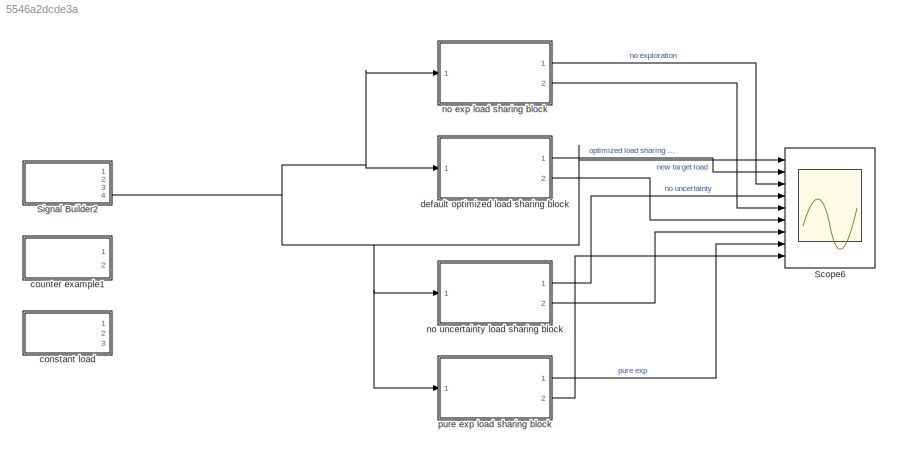
MODEL slx_5546a2dcde3a
KIND model
CONFIG AbsTol = auto
CONFIG EnableMultiTasking = off
CONFIG FixedStep = auto
CONFIG InitFcn = global LOData LOModelData gprMdlLP_machine1 gprMdlLP_machine2 gprMdlLP_machine3 gprMdlLP_machine4 gprMdlLP_machine5 significance SteadyState explore explore_signal total_uncertainty\nload load_opt_multiple_init.mat
CONFIG MaxStep = auto
CONFIG MinStep = auto
CONFIG RelTol = 1e-3
CONFIG SampleTimeConstraint = Unconstrained
CONFIG SolverName = ode15s
CONFIG StartTime = 0.0
CONFIG StopTime = 42000
BLOCK [Scope] Scope6
  Floating = off
  NumInputPorts = 9
  Ports = [9]
  ScopeSpecificationString = Simulink.scopes.TimeScopeBlockCfg('CurrentConfiguration', extmgr.ConfigurationSet(extmgr.Configuration('Core','General UI',true),extmgr.Configuration('Core','Source UI',true),extmgr.Configuration('Sources','WiredSimulink',true,'DataLoggingVariableName','RegretDiff','DataLogging',true,'DataLoggingSaveFormat','StructureWithTime'),extmgr.Configuration('Visuals','Time Domain',true,'SerializedDisplays'...<+1746ch>
BLOCK [SubSystem] Signal Builder2
  ClipboardFcn = sigbuilder_block('clipboard');
  CloseFcn = sigbuilder_block('close');
  ContinueFcn = sigbuilder_block('continue');
  CopyFcn = sigbuilder_block('copy');
  DeleteFcn = sigbuilder_block('delete');
  LoadFcn = sigbuilder_block('load');
  MaskHideContents = on
  ModelCloseFcn = sigbuilder_block('modelClose');
  NameChangeFcn = sigbuilder_block('namechange');
  OpenFcn = sigbuilder_block('open',[13 58 890 740 ]);
  PauseFcn = sigbuilder_block('pause');
  Ports = [0, 4]
  PreSaveFcn = sigbuilder_block('preSave');
  RequestExecContextInheritance = off
  StartFcn = sigbuilder_block('start');
  StopFcn = sigbuilder_block('stop');
  Tag = STV Subsys
BLOCK [Demux] Signal Builder2/Demux
  DisplayOption = none
  Ports = [1, 4]
  Tag = STV Demux
BLOCK [FromWorkspace] Signal Builder2/FromWs
  Tag = STV FromWs
  VariableName = tuvar
BLOCK [Outport] Signal Builder2/Imported_Signal 1
  Port = 3
  Tag = STV Outport
BLOCK [Outport] Signal Builder2/Imported_Signal 2
  Port = 2
  Tag = STV Outport
BLOCK [Outport] Signal Builder2/Imported_Signal 3
  Port = 4
  Tag = STV Outport
BLOCK [Outport] Signal Builder2/Signal 1
  Tag = STV Outport
BLOCK [SubSystem] constant load
  ClipboardFcn = sigbuilder_block('clipboard');
  CloseFcn = sigbuilder_block('close');
  ContinueFcn = sigbuilder_block('continue');
  CopyFcn = sigbuilder_block('copy');
  DeleteFcn = sigbuilder_block('delete');
  LoadFcn = sigbuilder_block('load');
  MaskHideContents = on
  ModelCloseFcn = sigbuilder_block('modelClose');
  NameChangeFcn = sigbuilder_block('namechange');
  OpenFcn = sigbuilder_block('open',[384 58 890 740 ]);
  PauseFcn = sigbuilder_block('pause');
  Ports = [0, 3]
  PreSaveFcn = sigbuilder_block('preSave');
  RequestExecContextInheritance = off
  StartFcn = sigbuilder_block('start');
  StopFcn = sigbuilder_block('stop');
  Tag = STV Subsys
BLOCK [Demux] constant load/Demux
  DisplayOption = none
  Outputs = 3
  Ports = [1, 3]
  Tag = STV Demux
BLOCK [FromWorkspace] constant load/FromWs
  Tag = STV FromWs
  VariableName = tuvar
BLOCK [Outport] constant load/Imported_Signal 1
  Tag = STV Outport
BLOCK [Outport] constant load/Imported_Signal 2
  Port = 2
  Tag = STV Outport
BLOCK [Outport] constant load/Signal 1
  Port = 3
  Tag = STV Outport
BLOCK [SubSystem] counter example1
  ClipboardFcn = sigbuilder_block('clipboard');
  CloseFcn = sigbuilder_block('close');
  ContinueFcn = sigbuilder_block('continue');
  CopyFcn = sigbuilder_block('copy');
  DeleteFcn = sigbuilder_block('delete');
  LoadFcn = sigbuilder_block('load');
  MaskHideContents = on
  ModelCloseFcn = sigbuilder_block('modelClose');
  NameChangeFcn = sigbuilder_block('namechange');
  OpenFcn = sigbuilder_block('open',[383 59 890 740 ]);
  PauseFcn = sigbuilder_block('pause');
  Ports = [0, 2]
  PreSaveFcn = sigbuilder_block('preSave');
  RequestExecContextInheritance = off
  StartFcn = sigbuilder_block('start');
  StopFcn = sigbuilder_block('stop');
  Tag = STV Subsys
BLOCK [Demux] counter example1/Demux
  DisplayOption = none
  Outputs = 2
  Ports = [1, 2]
  Tag = STV Demux
BLOCK [FromWorkspace] counter example1/FromWs
  Tag = STV FromWs
  VariableName = tuvar
BLOCK [Outport] counter example1/Imported_Signal 1
  Tag = STV Outport
BLOCK [Outport] counter example1/Imported_Signal 2
  Port = 2
  Tag = STV Outport
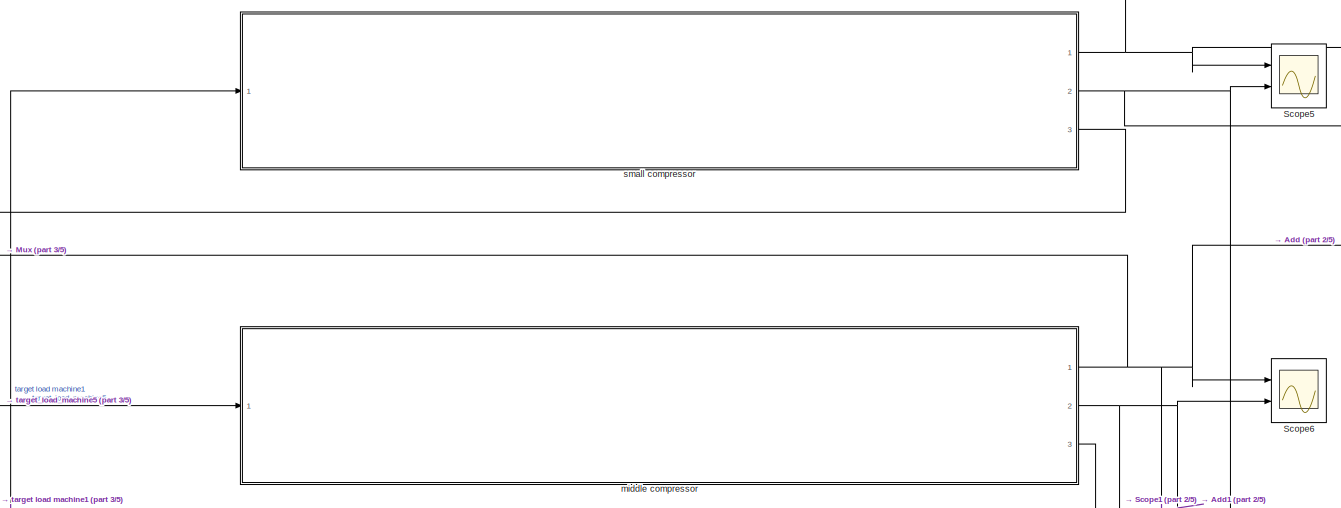
[diagram: default optimized load sharing block - part 1/5, top center region]
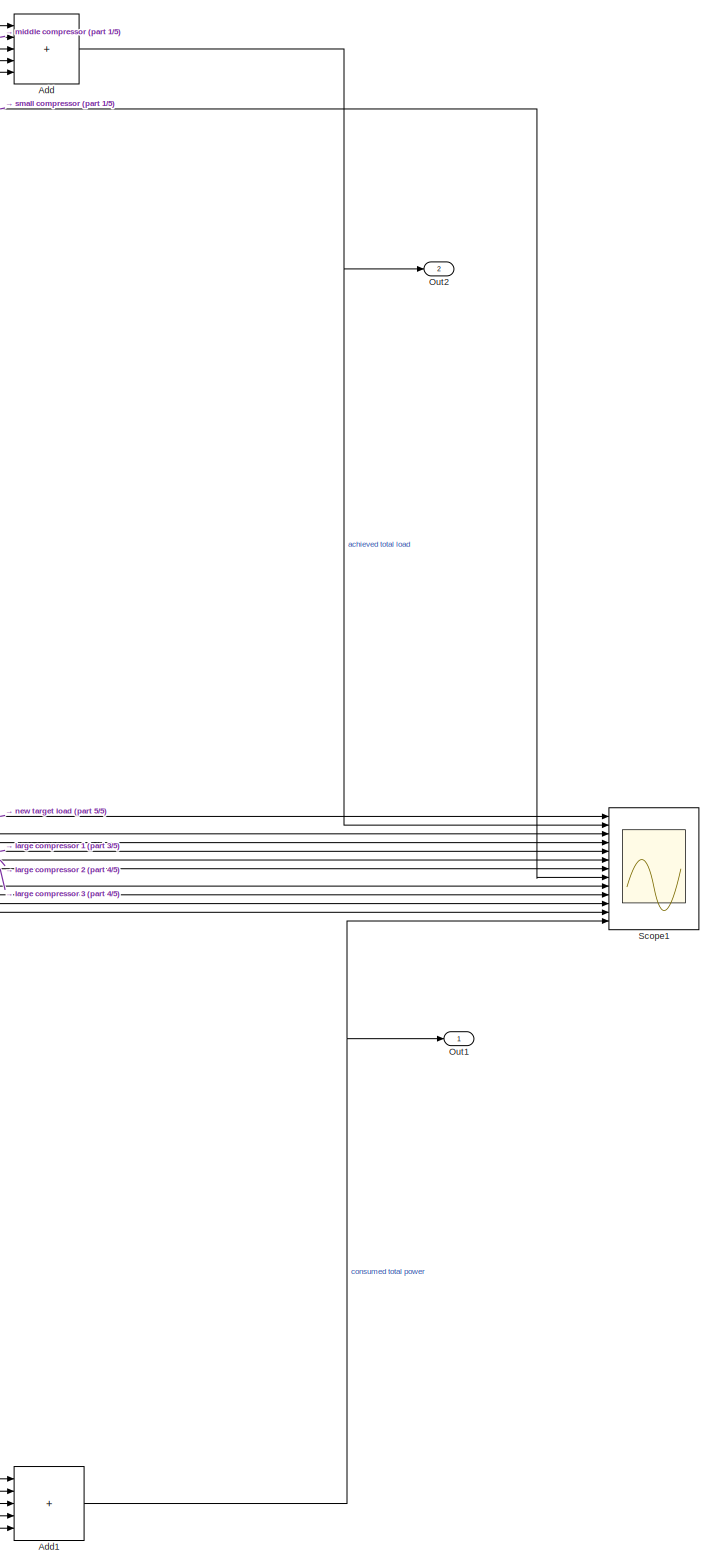
[diagram: default optimized load sharing block - part 2/5, right side, full height]
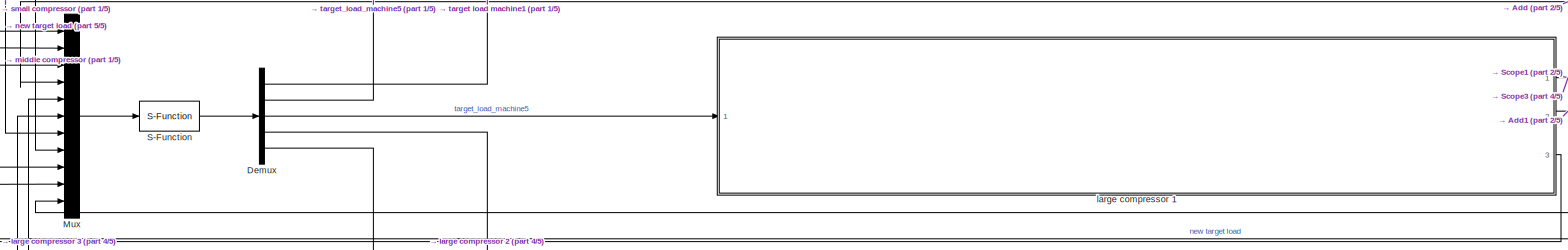
[diagram: default optimized load sharing block - part 3/5, central region]
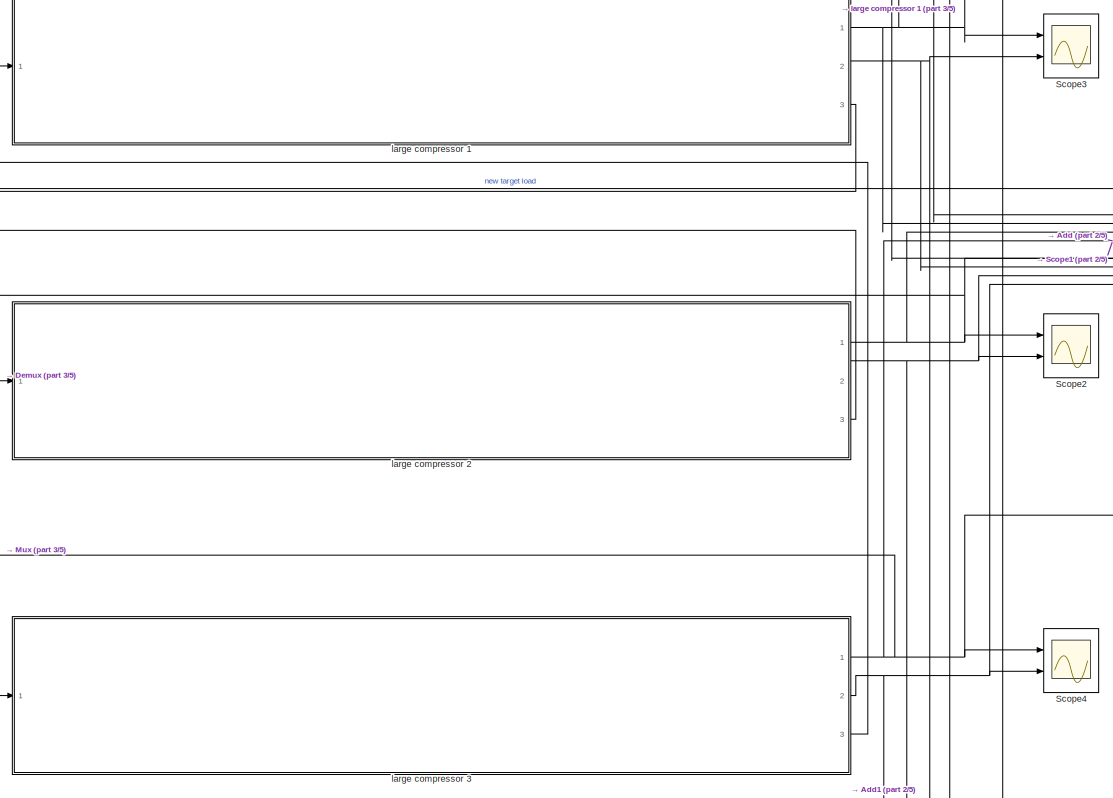
[diagram: default optimized load sharing block - part 4/5, bottom center region]
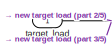
[diagram: default optimized load sharing block - part 5/5, middle left region]
BLOCK [SubSystem] default optimized load sharing block
  Ports = [1, 2]
  RequestExecContextInheritance = off
  Tag = equal load sharing
BLOCK [Sum] default optimized load sharing block/Add
  IconShape = rectangular
  Inputs = +++++
  Ports = [5, 1]
BLOCK [Sum] default optimized load sharing block/Add1
  IconShape = rectangular
  Inputs = +++++
  Ports = [5, 1]
BLOCK [Demux] default optimized load sharing block/Demux
  Outputs = 5
  Ports = [1, 5]
BLOCK [Mux] default optimized load sharing block/Mux
  DisplayOption = bar
  Inputs = 11
  Ports = [11, 1]
BLOCK [Outport] default optimized load sharing block/Out1
BLOCK [Outport] default optimized load sharing block/Out2
  Port = 2
BLOCK [S-Function] default optimized load sharing block/S-Function
  EnableBusSupport = off
  FunctionName = load_opt
  Parameters = [],[]
  Ports = [1, 1]
  SFcnIsStateOwnerBlock = off
  SFunctionDeploymentMode = off
BLOCK [Scope] default optimized load sharing block/Scope1
  Floating = off
  NumInputPorts = 13
  Ports = [13]
  ScopeSpecificationString = Simulink.scopes.TimeScopeBlockCfg('CurrentConfiguration', extmgr.ConfigurationSet(extmgr.Configuration('Core','General UI',true),extmgr.Configuration('Core','Source UI',true),extmgr.Configuration('Sources','WiredSimulink',true,'DataLoggingVariableName','GP_signals_output','DataLogging',true,'DataLoggingSaveFormat','StructureWithTime'),extmgr.Configuration('Visuals','Time Domain',true,'SerializedDi...<+2278ch>
BLOCK [Scope] default optimized load sharing block/Scope2
  Floating = off
  NumInputPorts = 2
  Ports = [2]
  ScopeSpecificationString = Simulink.scopes.TimeScopeBlockCfg('CurrentConfiguration', extmgr.ConfigurationSet(extmgr.Configuration('Core','General UI',true),extmgr.Configuration('Core','Source UI',true),extmgr.Configuration('Sources','WiredSimulink',true,'DataLoggingVariableName','ScopeData3'),extmgr.Configuration('Visuals','Time Domain',true,'SerializedDisplays',{struct('MinYLimReal','95.59882','MaxYLimReal','872.71123','YL...<+1563ch>  <repeated x4 — deduplicated; at blocks: Scope2>
BLOCK [Scope] default optimized load sharing block/Scope3
  Floating = off
  NumInputPorts = 2
  Ports = [2]
  ScopeSpecificationString = Simulink.scopes.TimeScopeBlockCfg('CurrentConfiguration', extmgr.ConfigurationSet(extmgr.Configuration('Core','General UI',true),extmgr.Configuration('Core','Source UI',true),extmgr.Configuration('Sources','WiredSimulink',true,'DataLoggingVariableName','ScopeData2'),extmgr.Configuration('Visuals','Time Domain',true,'SerializedDisplays',{struct('MinYLimReal','169.60381','MaxYLimReal','206.6664','YL...<+1563ch>  <repeated x4 — deduplicated; at blocks: Scope3>
BLOCK [Scope] default optimized load sharing block/Scope4
  Floating = off
  NumInputPorts = 2
  Ports = [2]
  ScopeSpecificationString = Simulink.scopes.TimeScopeBlockCfg('CurrentConfiguration', extmgr.ConfigurationSet(extmgr.Configuration('Core','General UI',true),extmgr.Configuration('Core','Source UI',true),extmgr.Configuration('Sources','WiredSimulink',true,'DataLoggingVariableName','ScopeData4'),extmgr.Configuration('Visuals','Time Domain',true,'SerializedDisplays',{struct('MinYLimReal','100.86967','MaxYLimReal','825.27359','Y...<+1566ch>  <repeated x4 — deduplicated; at blocks: Scope4>
BLOCK [Scope] default optimized load sharing block/Scope5
  Floating = off
  NumInputPorts = 2
  Ports = [2]
  ScopeSpecificationString = Simulink.scopes.TimeScopeBlockCfg('CurrentConfiguration', extmgr.ConfigurationSet(extmgr.Configuration('Core','General UI',true),extmgr.Configuration('Core','Source UI',true),extmgr.Configuration('Sources','WiredSimulink',true,'DataLoggingVariableName','ScopeData6'),extmgr.Configuration('Visuals','Time Domain',true,'SerializedDisplays',{struct('MinYLimReal','27.02592','MaxYLimReal','241.44156','YL...<+1558ch>  <repeated x4 — deduplicated; at blocks: Scope5>
BLOCK [Scope] default optimized load sharing block/Scope6
  Floating = off
  NumInputPorts = 2
  Ports = [2]
  ScopeSpecificationString = Simulink.scopes.TimeScopeBlockCfg('CurrentConfiguration', extmgr.ConfigurationSet(extmgr.Configuration('Core','General UI',true),extmgr.Configuration('Core','Source UI',true),extmgr.Configuration('Sources','WiredSimulink',true,'DataLoggingVariableName','ScopeData5'),extmgr.Configuration('Visuals','Time Domain',true,'SerializedDisplays',{struct('MinYLimReal','139.01313','MaxYLimReal','581.22076','Y...<+1564ch>  <repeated x4 — deduplicated; at blocks: Scope6>
BLOCK [SubSystem] default optimized load sharing block/large compressor 1
  Ports = [1, 3]
  RequestExecContextInheritance = off
BLOCK [Reference] default optimized load sharing block/large compressor 1/Band-Limited White Noise1  REF=simulink/Sources/Band-Limited
White Noise
  Ports = [0, 1]
  SourceBlock = simulink/Sources/Band-Limited\nWhite Noise
  SourceProductBaseCode = SL
  SourceType = Band-Limited White Noise.
BLOCK [Polyval] default optimized load sharing block/large compressor 1/Polynomial1
  Coefs = [-1.53490519e-09  2.28838030e-06 -9.59520873e-04 6.18821903e-01 7.51758182e+01]
BLOCK [Saturate] default optimized load sharing block/large compressor 1/Saturation1
  LowerLimit = 194
  UpperLimit = 795
BLOCK [Scope] default optimized load sharing block/large compressor 1/Scope2
  Floating = off
  NumInputPorts = 1
  Ports = [1]
  ScopeSpecificationString = Simulink.scopes.TimeScopeBlockCfg('CurrentConfiguration', extmgr.ConfigurationSet(extmgr.Configuration('Core','General UI',true),extmgr.Configuration('Core','Source UI',true),extmgr.Configuration('Sources','WiredSimulink',true,'DataLoggingVariableName','ScopeData1','DataLoggingSaveFormat','Structure'),extmgr.Configuration('Visuals','Time Domain',true,'SerializedDisplays',{struct('MinYLimReal','133...<+1517ch>  <repeated x4 — deduplicated; at blocks: Scope2>
BLOCK [Sum] default optimized load sharing block/large compressor 1/Sum1
  Inputs = |++
  Ports = [2, 1]
BLOCK [Outport] default optimized load sharing block/large compressor 1/achieved load_machine_3
BLOCK [Outport] default optimized load sharing block/large compressor 1/noisy power machine3
  Port = 3
BLOCK [Outport] default optimized load sharing block/large compressor 1/power machine3
  Port = 2
BLOCK [Inport] default optimized load sharing block/large compressor 1/target_load_machine3
BLOCK [SubSystem] default optimized load sharing block/large compressor 1/transfer function with PID3
  Ports = [1, 1]
  RequestExecContextInheritance = off
BLOCK [TransferFcn] default optimized load sharing block/large compressor 1/transfer function with PID3/GenSet_1_Dyn
  Denominator = [200 1]
BLOCK [Reference] default optimized load sharing block/large compressor 1/transfer function with PID3/GenSet_1_Load_Ctrl  REF=slpidlib/PID Controller (2DOF)
  Ports = [2, 1]
  SourceBlock = slpidlib/PID Controller (2DOF)
  SourceProductBaseCode = SL
  SourceType = PID 2dof
BLOCK [Outport] default optimized load sharing block/large compressor 1/transfer function with PID3/Out1
BLOCK [TransferFcn] default optimized load sharing block/large compressor 1/transfer function with PID3/Setpoint_Prefilter
  Denominator = [50 1]
BLOCK [Inport] default optimized load sharing block/large compressor 1/transfer function with PID3/target_load
BLOCK [SubSystem] default optimized load sharing block/large compressor 2
  Ports = [1, 3]
  RequestExecContextInheritance = off
BLOCK [Reference] default optimized load sharing block/large compressor 2/Band-Limited White Noise1  REF=simulink/Sources/Band-Limited
White Noise
  Ports = [0, 1]
  SourceBlock = simulink/Sources/Band-Limited\nWhite Noise
  SourceProductBaseCode = SL
  SourceType = Band-Limited White Noise.
BLOCK [Polyval] default optimized load sharing block/large compressor 2/Polynomial1
  Coefs = [-1.53490519e-09  2.28838030e-06 -9.59520873e-04 6.18821903e-01 7.51758182e+01]
BLOCK [Saturate] default optimized load sharing block/large compressor 2/Saturation1
  LowerLimit = 194
  UpperLimit = 795
BLOCK [Scope] default optimized load sharing block/large compressor 2/Scope2
  Floating = off
  NumInputPorts = 1
  Ports = [1]
  ScopeSpecificationString = Simulink.scopes.TimeScopeBlockCfg('CurrentConfiguration', extmgr.ConfigurationSet(extmgr.Configuration('Core','General UI',true),extmgr.Configuration('Core','Source UI',true),extmgr.Configuration('Sources','WiredSimulink',true,'DataLoggingVariableName','ScopeData1','DataLoggingSaveFormat','Structure'),extmgr.Configuration('Visuals','Time Domain',true,'SerializedDisplays',{struct('MinYLimReal','133...<+1531ch>  <repeated x12 — deduplicated; at blocks: Scope2>
BLOCK [Sum] default optimized load sharing block/large compressor 2/Sum1
  Inputs = |++
  Ports = [2, 1]
BLOCK [Outport] default optimized load sharing block/large compressor 2/achieved load_machine_4
BLOCK [Outport] default optimized load sharing block/large compressor 2/noisy power machine4
  Port = 3
BLOCK [Outport] default optimized load sharing block/large compressor 2/power machine4
  Port = 2
BLOCK [Inport] default optimized load sharing block/large compressor 2/target_load_machine4
BLOCK [SubSystem] default optimized load sharing block/large compressor 2/transfer function with PID4
  Ports = [1, 1]
  RequestExecContextInheritance = off
BLOCK [TransferFcn] default optimized load sharing block/large compressor 2/transfer function with PID4/GenSet_1_Dyn
  Denominator = [200 1]
BLOCK [Reference] default optimized load sharing block/large compressor 2/transfer function with PID4/GenSet_1_Load_Ctrl  REF=slpidlib/PID Controller (2DOF)
  Ports = [2, 1]
  SourceBlock = slpidlib/PID Controller (2DOF)
  SourceProductBaseCode = SL
  SourceType = PID 2dof
BLOCK [Outport] default optimized load sharing block/large compressor 2/transfer function with PID4/Out1
BLOCK [TransferFcn] default optimized load sharing block/large compressor 2/transfer function with PID4/Setpoint_Prefilter
  Denominator = [50 1]
BLOCK [Inport] default optimized load sharing block/large compressor 2/transfer function with PID4/target_load
BLOCK [SubSystem] default optimized load sharing block/large compressor 3
  Ports = [1, 3]
  RequestExecContextInheritance = off
BLOCK [Reference] default optimized load sharing block/large compressor 3/Band-Limited White Noise1  REF=simulink/Sources/Band-Limited
White Noise
  Ports = [0, 1]
  SourceBlock = simulink/Sources/Band-Limited\nWhite Noise
  SourceProductBaseCode = SL
  SourceType = Band-Limited White Noise.
BLOCK [Polyval] default optimized load sharing block/large compressor 3/Polynomial1
  Coefs = [-1.53490519e-09  2.28838030e-06 -9.59520873e-04 6.18821903e-01 7.51758182e+01]
BLOCK [Saturate] default optimized load sharing block/large compressor 3/Saturation1
  LowerLimit = 194
  UpperLimit = 795
BLOCK [Scope] default optimized load sharing block/large compressor 3/Scope2
  Floating = off
  NumInputPorts = 1
  Ports = [1]
BLOCK [Sum] default optimized load sharing block/large compressor 3/Sum1
  Inputs = |++
  Ports = [2, 1]
BLOCK [Outport] default optimized load sharing block/large compressor 3/achieved load_machine_5
BLOCK [Outport] default optimized load sharing block/large compressor 3/noisy power machine5
  Port = 3
BLOCK [Outport] default optimized load sharing block/large compressor 3/power machine5
  Port = 2
BLOCK [Inport] default optimized load sharing block/large compressor 3/target_load_machine5
BLOCK [SubSystem] default optimized load sharing block/large compressor 3/transfer function with PID5
  Ports = [1, 1]
  RequestExecContextInheritance = off
BLOCK [TransferFcn] default optimized load sharing block/large compressor 3/transfer function with PID5/GenSet_1_Dyn
  Denominator = [200 1]
BLOCK [Reference] default optimized load sharing block/large compressor 3/transfer function with PID5/GenSet_1_Load_Ctrl  REF=slpidlib/PID Controller (2DOF)
  Ports = [2, 1]
  SourceBlock = slpidlib/PID Controller (2DOF)
  SourceProductBaseCode = SL
  SourceType = PID 2dof
BLOCK [Outport] default optimized load sharing block/large compressor 3/transfer function with PID5/Out1
BLOCK [TransferFcn] default optimized load sharing block/large compressor 3/transfer function with PID5/Setpoint_Prefilter
  Denominator = [50 1]
BLOCK [Inport] default optimized load sharing block/large compressor 3/transfer function with PID5/target_load
BLOCK [SubSystem] default optimized load sharing block/middle compressor
  Ports = [1, 3]
  RequestExecContextInheritance = off
BLOCK [Reference] default optimized load sharing block/middle compressor/Band-Limited White Noise1  REF=simulink/Sources/Band-Limited
White Noise
  Ports = [0, 1]
  SourceBlock = simulink/Sources/Band-Limited\nWhite Noise
  SourceProductBaseCode = SL
  SourceType = Band-Limited White Noise.
BLOCK [Polyval] default optimized load sharing block/middle compressor/Polynomial1
  Coefs = [-1.42718017e-08 1.87477980e-05 -8.28649653e-03 1.88469092 -2.19952823]
BLOCK [Saturate] default optimized load sharing block/middle compressor/Saturation1
  LowerLimit = 237
  UpperLimit = 537
BLOCK [Scope] default optimized load sharing block/middle compressor/Scope2
  Floating = off
  NumInputPorts = 1
  Ports = [1]
BLOCK [Sum] default optimized load sharing block/middle compressor/Sum1
  Inputs = |++
  Ports = [2, 1]
BLOCK [Outport] default optimized load sharing block/middle compressor/achieved load_machine_2
BLOCK [Outport] default optimized load sharing block/middle compressor/noisy power machine2
  Port = 3
BLOCK [Outport] default optimized load sharing block/middle compressor/power machine2
  Port = 2
BLOCK [Inport] default optimized load sharing block/middle compressor/target_load_machine2
BLOCK [SubSystem] default optimized load sharing block/middle compressor/transfer function with PID2
  Ports = [1, 1]
  RequestExecContextInheritance = off
BLOCK [TransferFcn] default optimized load sharing block/middle compressor/transfer function with PID2/GenSet_1_Dyn
  Denominator = [200 1]
BLOCK [Reference] default optimized load sharing block/middle compressor/transfer function with PID2/GenSet_1_Load_Ctrl  REF=slpidlib/PID Controller (2DOF)
  Ports = [2, 1]
  SourceBlock = slpidlib/PID Controller (2DOF)
  SourceProductBaseCode = SL
  SourceType = PID 2dof
BLOCK [Outport] default optimized load sharing block/middle compressor/transfer function with PID2/Out1
BLOCK [TransferFcn] default optimized load sharing block/middle compressor/transfer function with PID2/Setpoint_Prefilter
  Denominator = [50 1]
BLOCK [Inport] default optimized load sharing block/middle compressor/transfer function with PID2/target_load
BLOCK [SubSystem] default optimized load sharing block/small compressor
  Ports = [1, 3]
  RequestExecContextInheritance = off
BLOCK [Reference] default optimized load sharing block/small compressor/Band-Limited White Noise1  REF=simulink/Sources/Band-Limited
White Noise
  Ports = [0, 1]
  SourceBlock = simulink/Sources/Band-Limited\nWhite Noise
  SourceProductBaseCode = SL
  SourceType = Band-Limited White Noise.
BLOCK [Polyval] default optimized load sharing block/small compressor/Polynomial1
  Coefs = [-9e-08 4e-05 -0.0052 0.7765 15.661]
BLOCK [Saturate] default optimized load sharing block/small compressor/Saturation1
  LowerLimit = 56
  UpperLimit = 220
BLOCK [Scope] default optimized load sharing block/small compressor/Scope2
  Floating = off
  NumInputPorts = 1
  Ports = [1]
  ScopeSpecificationString = Simulink.scopes.TimeScopeBlockCfg('CurrentConfiguration', extmgr.ConfigurationSet(extmgr.Configuration('Core','General UI',true),extmgr.Configuration('Core','Source UI',true),extmgr.Configuration('Sources','WiredSimulink',true,'DataLoggingVariableName','ScopeData1','DataLoggingSaveFormat','Structure'),extmgr.Configuration('Visuals','Time Domain',true,'SerializedDisplays',{struct('MinYLimReal','47....<+1531ch>  <repeated x4 — deduplicated; at blocks: Scope2>
BLOCK [Sum] default optimized load sharing block/small compressor/Sum1
  Inputs = |++
  Ports = [2, 1]
BLOCK [Outport] default optimized load sharing block/small compressor/achieved load_machine_1
BLOCK [Outport] default optimized load sharing block/small compressor/noisy power machine1
  Port = 3
BLOCK [Outport] default optimized load sharing block/small compressor/power machine1
  Port = 2
BLOCK [Inport] default optimized load sharing block/small compressor/target_load_machine1
BLOCK [SubSystem] default optimized load sharing block/small compressor/transfer function with PID1
  Ports = [1, 1]
  RequestExecContextInheritance = off
BLOCK [TransferFcn] default optimized load sharing block/small compressor/transfer function with PID1/GenSet_1_Dyn
  Denominator = [200 1]
BLOCK [Reference] default optimized load sharing block/small compressor/transfer function with PID1/GenSet_1_Load_Ctrl  REF=slpidlib/PID Controller (2DOF)
  Ports = [2, 1]
  SourceBlock = slpidlib/PID Controller (2DOF)
  SourceProductBaseCode = SL
  SourceType = PID 2dof
BLOCK [Outport] default optimized load sharing block/small compressor/transfer function with PID1/Out1
BLOCK [TransferFcn] default optimized load sharing block/small compressor/transfer function with PID1/Setpoint_Prefilter
  Denominator = [50 1]
BLOCK [Inport] default optimized load sharing block/small compressor/transfer function with PID1/target_load
BLOCK [Inport] default optimized load sharing block/target_load
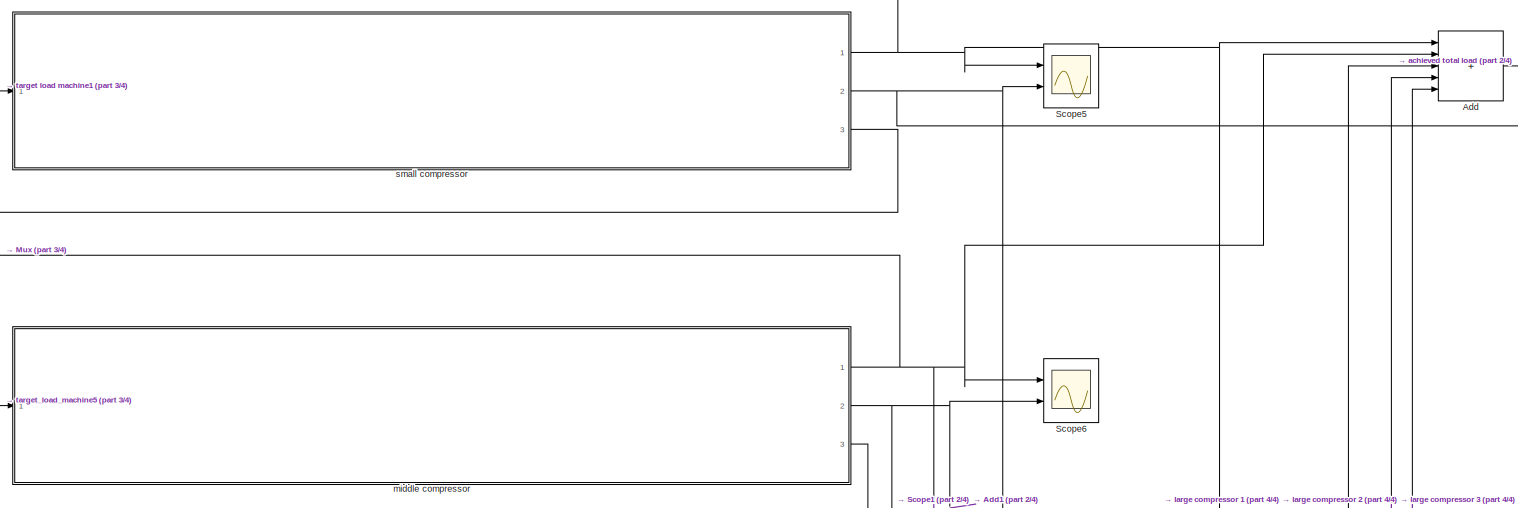
[diagram: no exp load sharing block - part 1/4, top center region]
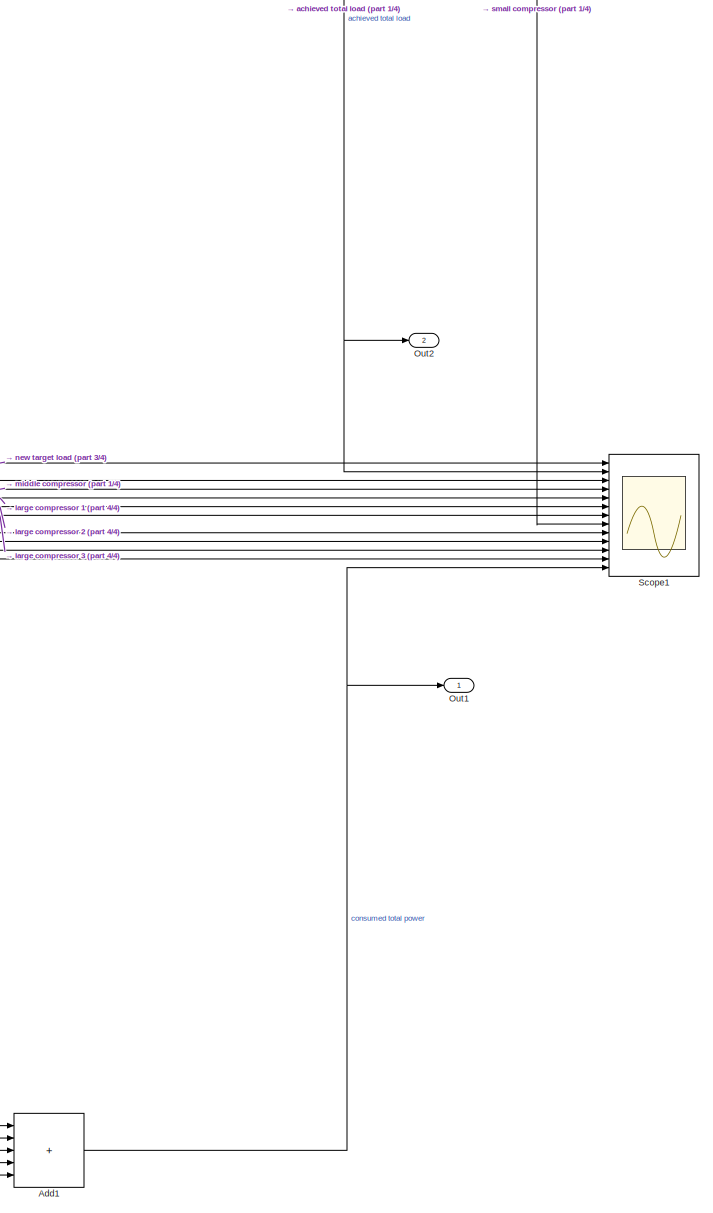
[diagram: no exp load sharing block - part 2/4, middle right region]
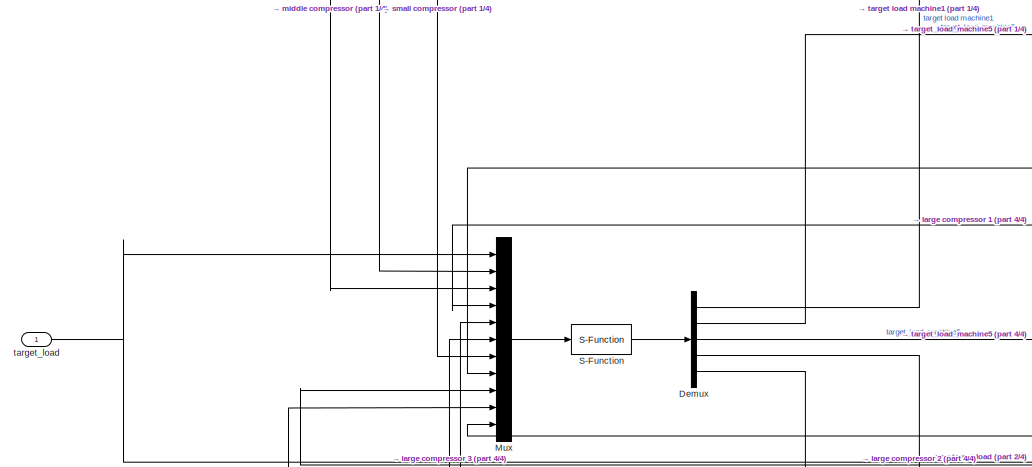
[diagram: no exp load sharing block - part 3/4, middle left region]
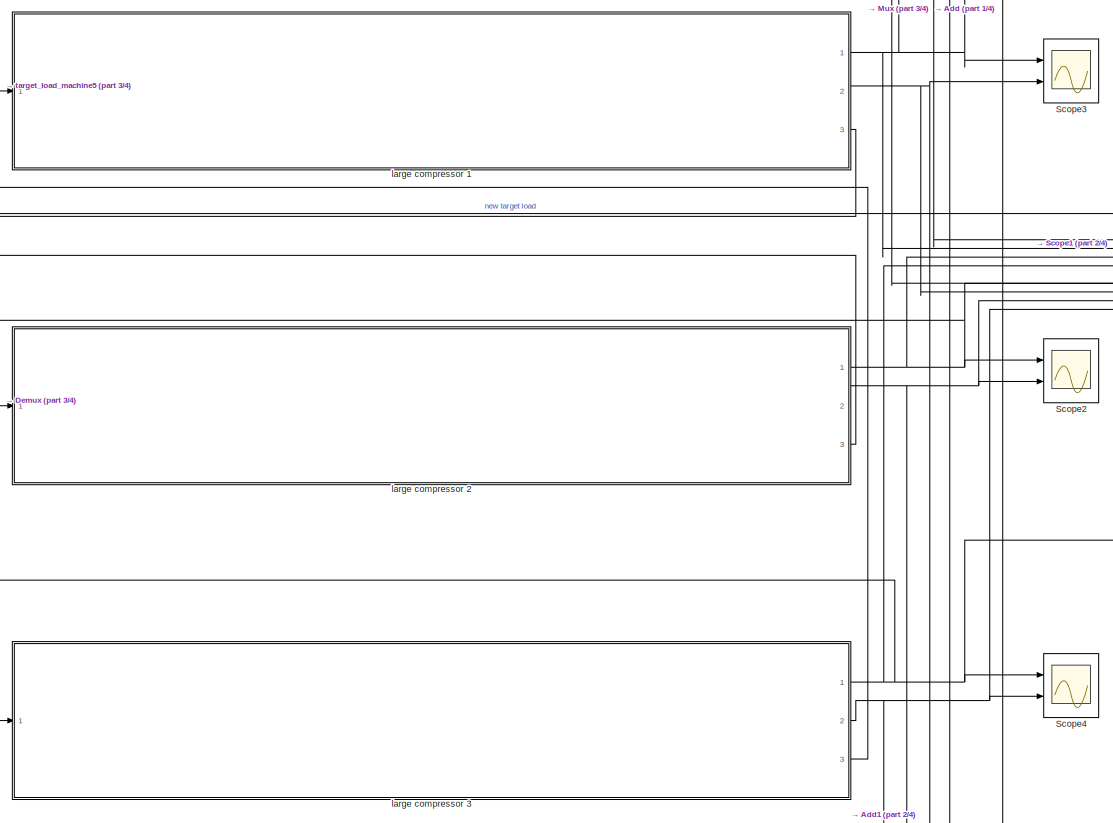
[diagram: no exp load sharing block - part 4/4, central region]
BLOCK [SubSystem] no exp load sharing block
  Commented = on
  Ports = [1, 2]
  RequestExecContextInheritance = off
  Tag = equal load sharing
BLOCK [Sum] no exp load sharing block/Add
  IconShape = rectangular
  Inputs = +++++
  Ports = [5, 1]
BLOCK [Sum] no exp load sharing block/Add1
  IconShape = rectangular
  Inputs = +++++
  Ports = [5, 1]
BLOCK [Demux] no exp load sharing block/Demux
  Outputs = 5
  Ports = [1, 5]
BLOCK [Mux] no exp load sharing block/Mux
  DisplayOption = bar
  Inputs = 11
  Ports = [11, 1]
BLOCK [Outport] no exp load sharing block/Out1
BLOCK [Outport] no exp load sharing block/Out2
  Port = 2
BLOCK [S-Function] no exp load sharing block/S-Function
  EnableBusSupport = off
  FunctionName = load_opt
  Parameters = [],[]
  Ports = [1, 1]
  SFcnIsStateOwnerBlock = off
  SFunctionDeploymentMode = off
BLOCK [Scope] no exp load sharing block/Scope1
  Floating = off
  NumInputPorts = 13
  Ports = [13]
  ScopeSpecificationString = Simulink.scopes.TimeScopeBlockCfg('CurrentConfiguration', extmgr.ConfigurationSet(extmgr.Configuration('Core','General UI',true),extmgr.Configuration('Core','Source UI',true),extmgr.Configuration('Sources','WiredSimulink',true,'DataLoggingVariableName','no_exp_GP_signals_output','DataLogging',true,'DataLoggingSaveFormat','StructureWithTime'),extmgr.Configuration('Visuals','Time Domain',true,'Seria...<+2285ch>
BLOCK [Scope] no exp load sharing block/Scope2
  Floating = off
  NumInputPorts = 2
  Ports = [2]
BLOCK [Scope] no exp load sharing block/Scope3
  Floating = off
  NumInputPorts = 2
  Ports = [2]
BLOCK [Scope] no exp load sharing block/Scope4
  Floating = off
  NumInputPorts = 2
  Ports = [2]
BLOCK [Scope] no exp load sharing block/Scope5
  Floating = off
  NumInputPorts = 2
  Ports = [2]
BLOCK [Scope] no exp load sharing block/Scope6
  Floating = off
  NumInputPorts = 2
  Ports = [2]
BLOCK [SubSystem] no exp load sharing block/large compressor 1
  Ports = [1, 3]
  RequestExecContextInheritance = off
BLOCK [Reference] no exp load sharing block/large compressor 1/Band-Limited White Noise1  REF=simulink/Sources/Band-Limited
White Noise
  Ports = [0, 1]
  SourceBlock = simulink/Sources/Band-Limited\nWhite Noise
  SourceProductBaseCode = SL
  SourceType = Band-Limited White Noise.
BLOCK [Polyval] no exp load sharing block/large compressor 1/Polynomial1
  Coefs = [-1.53490519e-09  2.28838030e-06 -9.59520873e-04 6.18821903e-01 7.51758182e+01]
BLOCK [Saturate] no exp load sharing block/large compressor 1/Saturation1
  LowerLimit = 194
  UpperLimit = 795
BLOCK [Scope] no exp load sharing block/large compressor 1/Scope2
  Floating = off
  NumInputPorts = 1
  Ports = [1]
BLOCK [Sum] no exp load sharing block/large compressor 1/Sum1
  Inputs = |++
  Ports = [2, 1]
BLOCK [Outport] no exp load sharing block/large compressor 1/achieved load_machine_3
BLOCK [Outport] no exp load sharing block/large compressor 1/noisy power machine3
  Port = 3
BLOCK [Outport] no exp load sharing block/large compressor 1/power machine3
  Port = 2
BLOCK [Inport] no exp load sharing block/large compressor 1/target_load_machine3
BLOCK [SubSystem] no exp load sharing block/large compressor 1/transfer function with PID3
  Ports = [1, 1]
  RequestExecContextInheritance = off
BLOCK [TransferFcn] no exp load sharing block/large compressor 1/transfer function with PID3/GenSet_1_Dyn
  Denominator = [200 1]
BLOCK [Reference] no exp load sharing block/large compressor 1/transfer function with PID3/GenSet_1_Load_Ctrl  REF=slpidlib/PID Controller (2DOF)
  Ports = [2, 1]
  SourceBlock = slpidlib/PID Controller (2DOF)
  SourceProductBaseCode = SL
  SourceType = PID 2dof
BLOCK [Outport] no exp load sharing block/large compressor 1/transfer function with PID3/Out1
BLOCK [TransferFcn] no exp load sharing block/large compressor 1/transfer function with PID3/Setpoint_Prefilter
  Denominator = [50 1]
BLOCK [Inport] no exp load sharing block/large compressor 1/transfer function with PID3/target_load
BLOCK [SubSystem] no exp load sharing block/large compressor 2
  Ports = [1, 3]
  RequestExecContextInheritance = off
BLOCK [Reference] no exp load sharing block/large compressor 2/Band-Limited White Noise1  REF=simulink/Sources/Band-Limited
White Noise
  Ports = [0, 1]
  SourceBlock = simulink/Sources/Band-Limited\nWhite Noise
  SourceProductBaseCode = SL
  SourceType = Band-Limited White Noise.
BLOCK [Polyval] no exp load sharing block/large compressor 2/Polynomial1
  Coefs = [-1.53490519e-09  2.28838030e-06 -9.59520873e-04 6.18821903e-01 7.51758182e+01]
BLOCK [Saturate] no exp load sharing block/large compressor 2/Saturation1
  LowerLimit = 194
  UpperLimit = 795
BLOCK [Scope] no exp load sharing block/large compressor 2/Scope2
  Floating = off
  NumInputPorts = 1
  Ports = [1]
BLOCK [Sum] no exp load sharing block/large compressor 2/Sum1
  Inputs = |++
  Ports = [2, 1]
BLOCK [Outport] no exp load sharing block/large compressor 2/achieved load_machine_4
BLOCK [Outport] no exp load sharing block/large compressor 2/noisy power machine4
  Port = 3
BLOCK [Outport] no exp load sharing block/large compressor 2/power machine4
  Port = 2
BLOCK [Inport] no exp load sharing block/large compressor 2/target_load_machine4
BLOCK [SubSystem] no exp load sharing block/large compressor 2/transfer function with PID4
  Ports = [1, 1]
  RequestExecContextInheritance = off
BLOCK [TransferFcn] no exp load sharing block/large compressor 2/transfer function with PID4/GenSet_1_Dyn
  Denominator = [200 1]
BLOCK [Reference] no exp load sharing block/large compressor 2/transfer function with PID4/GenSet_1_Load_Ctrl  REF=slpidlib/PID Controller (2DOF)
  Ports = [2, 1]
  SourceBlock = slpidlib/PID Controller (2DOF)
  SourceProductBaseCode = SL
  SourceType = PID 2dof
BLOCK [Outport] no exp load sharing block/large compressor 2/transfer function with PID4/Out1
BLOCK [TransferFcn] no exp load sharing block/large compressor 2/transfer function with PID4/Setpoint_Prefilter
  Denominator = [50 1]
BLOCK [Inport] no exp load sharing block/large compressor 2/transfer function with PID4/target_load
BLOCK [SubSystem] no exp load sharing block/large compressor 3
  Ports = [1, 3]
  RequestExecContextInheritance = off
BLOCK [Reference] no exp load sharing block/large compressor 3/Band-Limited White Noise1  REF=simulink/Sources/Band-Limited
White Noise
  Ports = [0, 1]
  SourceBlock = simulink/Sources/Band-Limited\nWhite Noise
  SourceProductBaseCode = SL
  SourceType = Band-Limited White Noise.
BLOCK [Polyval] no exp load sharing block/large compressor 3/Polynomial1
  Coefs = [-1.53490519e-09  2.28838030e-06 -9.59520873e-04 6.18821903e-01 7.51758182e+01]
BLOCK [Saturate] no exp load sharing block/large compressor 3/Saturation1
  LowerLimit = 194
  UpperLimit = 795
BLOCK [Scope] no exp load sharing block/large compressor 3/Scope2
  Floating = off
  NumInputPorts = 1
  Ports = [1]
BLOCK [Sum] no exp load sharing block/large compressor 3/Sum1
  Inputs = |++
  Ports = [2, 1]
BLOCK [Outport] no exp load sharing block/large compressor 3/achieved load_machine_5
BLOCK [Outport] no exp load sharing block/large compressor 3/noisy power machine5
  Port = 3
BLOCK [Outport] no exp load sharing block/large compressor 3/power machine5
  Port = 2
BLOCK [Inport] no exp load sharing block/large compressor 3/target_load_machine5
BLOCK [SubSystem] no exp load sharing block/large compressor 3/transfer function with PID5
  Ports = [1, 1]
  RequestExecContextInheritance = off
BLOCK [TransferFcn] no exp load sharing block/large compressor 3/transfer function with PID5/GenSet_1_Dyn
  Denominator = [200 1]
BLOCK [Reference] no exp load sharing block/large compressor 3/transfer function with PID5/GenSet_1_Load_Ctrl  REF=slpidlib/PID Controller (2DOF)
  Ports = [2, 1]
  SourceBlock = slpidlib/PID Controller (2DOF)
  SourceProductBaseCode = SL
  SourceType = PID 2dof
BLOCK [Outport] no exp load sharing block/large compressor 3/transfer function with PID5/Out1
BLOCK [TransferFcn] no exp load sharing block/large compressor 3/transfer function with PID5/Setpoint_Prefilter
  Denominator = [50 1]
BLOCK [Inport] no exp load sharing block/large compressor 3/transfer function with PID5/target_load
BLOCK [SubSystem] no exp load sharing block/middle compressor
  Ports = [1, 3]
  RequestExecContextInheritance = off
BLOCK [Reference] no exp load sharing block/middle compressor/Band-Limited White Noise1  REF=simulink/Sources/Band-Limited
White Noise
  Ports = [0, 1]
  SourceBlock = simulink/Sources/Band-Limited\nWhite Noise
  SourceProductBaseCode = SL
  SourceType = Band-Limited White Noise.
BLOCK [Polyval] no exp load sharing block/middle compressor/Polynomial1
  Coefs = [-1.42718017e-08 1.87477980e-05 -8.28649653e-03 1.88469092 -2.19952823]
BLOCK [Saturate] no exp load sharing block/middle compressor/Saturation1
  LowerLimit = 237
  UpperLimit = 537
BLOCK [Scope] no exp load sharing block/middle compressor/Scope2
  Floating = off
  NumInputPorts = 1
  Ports = [1]
BLOCK [Sum] no exp load sharing block/middle compressor/Sum1
  Inputs = |++
  Ports = [2, 1]
BLOCK [Outport] no exp load sharing block/middle compressor/achieved load_machine_2
BLOCK [Outport] no exp load sharing block/middle compressor/noisy power machine2
  Port = 3
BLOCK [Outport] no exp load sharing block/middle compressor/power machine2
  Port = 2
BLOCK [Inport] no exp load sharing block/middle compressor/target_load_machine2
BLOCK [SubSystem] no exp load sharing block/middle compressor/transfer function with PID2
  Ports = [1, 1]
  RequestExecContextInheritance = off
BLOCK [TransferFcn] no exp load sharing block/middle compressor/transfer function with PID2/GenSet_1_Dyn
  Denominator = [200 1]
BLOCK [Reference] no exp load sharing block/middle compressor/transfer function with PID2/GenSet_1_Load_Ctrl  REF=slpidlib/PID Controller (2DOF)
  Ports = [2, 1]
  SourceBlock = slpidlib/PID Controller (2DOF)
  SourceProductBaseCode = SL
  SourceType = PID 2dof
BLOCK [Outport] no exp load sharing block/middle compressor/transfer function with PID2/Out1
BLOCK [TransferFcn] no exp load sharing block/middle compressor/transfer function with PID2/Setpoint_Prefilter
  Denominator = [50 1]
BLOCK [Inport] no exp load sharing block/middle compressor/transfer function with PID2/target_load
BLOCK [SubSystem] no exp load sharing block/small compressor
  Ports = [1, 3]
  RequestExecContextInheritance = off
BLOCK [Reference] no exp load sharing block/small compressor/Band-Limited White Noise1  REF=simulink/Sources/Band-Limited
White Noise
  Ports = [0, 1]
  SourceBlock = simulink/Sources/Band-Limited\nWhite Noise
  SourceProductBaseCode = SL
  SourceType = Band-Limited White Noise.
BLOCK [Polyval] no exp load sharing block/small compressor/Polynomial1
  Coefs = [-9e-08 4e-05 -0.0052 0.7765 15.661]
BLOCK [Saturate] no exp load sharing block/small compressor/Saturation1
  LowerLimit = 56
  UpperLimit = 220
BLOCK [Scope] no exp load sharing block/small compressor/Scope2
  Floating = off
  NumInputPorts = 1
  Ports = [1]
BLOCK [Sum] no exp load sharing block/small compressor/Sum1
  Inputs = |++
  Ports = [2, 1]
BLOCK [Outport] no exp load sharing block/small compressor/achieved load_machine_1
BLOCK [Outport] no exp load sharing block/small compressor/noisy power machine1
  Port = 3
BLOCK [Outport] no exp load sharing block/small compressor/power machine1
  Port = 2
BLOCK [Inport] no exp load sharing block/small compressor/target_load_machine1
BLOCK [SubSystem] no exp load sharing block/small compressor/transfer function with PID1
  Ports = [1, 1]
  RequestExecContextInheritance = off
BLOCK [TransferFcn] no exp load sharing block/small compressor/transfer function with PID1/GenSet_1_Dyn
  Denominator = [200 1]
BLOCK [Reference] no exp load sharing block/small compressor/transfer function with PID1/GenSet_1_Load_Ctrl  REF=slpidlib/PID Controller (2DOF)
  Ports = [2, 1]
  SourceBlock = slpidlib/PID Controller (2DOF)
  SourceProductBaseCode = SL
  SourceType = PID 2dof
BLOCK [Outport] no exp load sharing block/small compressor/transfer function with PID1/Out1
BLOCK [TransferFcn] no exp load sharing block/small compressor/transfer function with PID1/Setpoint_Prefilter
  Denominator = [50 1]
BLOCK [Inport] no exp load sharing block/small compressor/transfer function with PID1/target_load
BLOCK [Inport] no exp load sharing block/target_load
BLOCK [SubSystem] no uncertainty load sharing block
  Commented = on
  Ports = [1, 2]
  RequestExecContextInheritance = off
  Tag = equal load sharing
BLOCK [Sum] no uncertainty load sharing block/Add
  IconShape = rectangular
  Inputs = +++++
  Ports = [5, 1]
BLOCK [Sum] no uncertainty load sharing block/Add1
  IconShape = rectangular
  Inputs = +++++
  Ports = [5, 1]
BLOCK [Demux] no uncertainty load sharing block/Demux
  Outputs = 5
  Ports = [1, 5]
BLOCK [Mux] no uncertainty load sharing block/Mux
  DisplayOption = bar
  Inputs = 11
  Ports = [11, 1]
BLOCK [Outport] no uncertainty load sharing block/Out1
BLOCK [Outport] no uncertainty load sharing block/Out2
  Port = 2
BLOCK [S-Function] no uncertainty load sharing block/S-Function
  EnableBusSupport = off
  FunctionName = load_opt_without_unc
  Parameters = [],[]
  Ports = [1, 1]
  SFcnIsStateOwnerBlock = off
  SFunctionDeploymentMode = off
BLOCK [Scope] no uncertainty load sharing block/Scope1
  Floating = off
  NumInputPorts = 13
  Ports = [13]
  ScopeSpecificationString = Simulink.scopes.TimeScopeBlockCfg('CurrentConfiguration', extmgr.ConfigurationSet(extmgr.Configuration('Core','General UI',true),extmgr.Configuration('Core','Source UI',true),extmgr.Configuration('Sources','WiredSimulink',true,'DataLoggingVariableName','no_unc_GP_signals_output','DataLogging',true,'DataLoggingSaveFormat','StructureWithTime'),extmgr.Configuration('Visuals','Time Domain',true,'Seria...<+2285ch>
BLOCK [Scope] no uncertainty load sharing block/Scope2
  Floating = off
  NumInputPorts = 2
  Ports = [2]
BLOCK [Scope] no uncertainty load sharing block/Scope3
  Floating = off
  NumInputPorts = 2
  Ports = [2]
BLOCK [Scope] no uncertainty load sharing block/Scope4
  Floating = off
  NumInputPorts = 2
  Ports = [2]
BLOCK [Scope] no uncertainty load sharing block/Scope5
  Floating = off
  NumInputPorts = 2
  Ports = [2]
BLOCK [Scope] no uncertainty load sharing block/Scope6
  Floating = off
  NumInputPorts = 2
  Ports = [2]
BLOCK [SubSystem] no uncertainty load sharing block/large compressor 1
  Ports = [1, 3]
  RequestExecContextInheritance = off
BLOCK [Reference] no uncertainty load sharing block/large compressor 1/Band-Limited White Noise1  REF=simulink/Sources/Band-Limited
White Noise
  Ports = [0, 1]
  SourceBlock = simulink/Sources/Band-Limited\nWhite Noise
  SourceProductBaseCode = SL
  SourceType = Band-Limited White Noise.
BLOCK [Polyval] no uncertainty load sharing block/large compressor 1/Polynomial1
  Coefs = [-1.53490519e-09  2.28838030e-06 -9.59520873e-04 6.18821903e-01 7.51758182e+01]
BLOCK [Saturate] no uncertainty load sharing block/large compressor 1/Saturation1
  LowerLimit = 194
  UpperLimit = 795
BLOCK [Scope] no uncertainty load sharing block/large compressor 1/Scope2
  Floating = off
  NumInputPorts = 1
  Ports = [1]
BLOCK [Sum] no uncertainty load sharing block/large compressor 1/Sum1
  Inputs = |++
  Ports = [2, 1]
BLOCK [Outport] no uncertainty load sharing block/large compressor 1/achieved load_machine_3
BLOCK [Outport] no uncertainty load sharing block/large compressor 1/noisy power machine3
  Port = 3
BLOCK [Outport] no uncertainty load sharing block/large compressor 1/power machine3
  Port = 2
BLOCK [Inport] no uncertainty load sharing block/large compressor 1/target_load_machine3
BLOCK [SubSystem] no uncertainty load sharing block/large compressor 1/transfer function with PID3
  Ports = [1, 1]
  RequestExecContextInheritance = off
BLOCK [TransferFcn] no uncertainty load sharing block/large compressor 1/transfer function with PID3/GenSet_1_Dyn
  Denominator = [200 1]
BLOCK [Reference] no uncertainty load sharing block/large compressor 1/transfer function with PID3/GenSet_1_Load_Ctrl  REF=slpidlib/PID Controller (2DOF)
  Ports = [2, 1]
  SourceBlock = slpidlib/PID Controller (2DOF)
  SourceProductBaseCode = SL
  SourceType = PID 2dof
BLOCK [Outport] no uncertainty load sharing block/large compressor 1/transfer function with PID3/Out1
BLOCK [TransferFcn] no uncertainty load sharing block/large compressor 1/transfer function with PID3/Setpoint_Prefilter
  Denominator = [50 1]
BLOCK [Inport] no uncertainty load sharing block/large compressor 1/transfer function with PID3/target_load
BLOCK [SubSystem] no uncertainty load sharing block/large compressor 2
  Ports = [1, 3]
  RequestExecContextInheritance = off
BLOCK [Reference] no uncertainty load sharing block/large compressor 2/Band-Limited White Noise1  REF=simulink/Sources/Band-Limited
White Noise
  Ports = [0, 1]
  SourceBlock = simulink/Sources/Band-Limited\nWhite Noise
  SourceProductBaseCode = SL
  SourceType = Band-Limited White Noise.
BLOCK [Polyval] no uncertainty load sharing block/large compressor 2/Polynomial1
  Coefs = [-1.53490519e-09  2.28838030e-06 -9.59520873e-04 6.18821903e-01 7.51758182e+01]
BLOCK [Saturate] no uncertainty load sharing block/large compressor 2/Saturation1
  LowerLimit = 194
  UpperLimit = 795
BLOCK [Scope] no uncertainty load sharing block/large compressor 2/Scope2
  Floating = off
  NumInputPorts = 1
  Ports = [1]
BLOCK [Sum] no uncertainty load sharing block/large compressor 2/Sum1
  Inputs = |++
  Ports = [2, 1]
BLOCK [Outport] no uncertainty load sharing block/large compressor 2/achieved load_machine_4
BLOCK [Outport] no uncertainty load sharing block/large compressor 2/noisy power machine4
  Port = 3
BLOCK [Outport] no uncertainty load sharing block/large compressor 2/power machine4
  Port = 2
BLOCK [Inport] no uncertainty load sharing block/large compressor 2/target_load_machine4
BLOCK [SubSystem] no uncertainty load sharing block/large compressor 2/transfer function with PID4
  Ports = [1, 1]
  RequestExecContextInheritance = off
BLOCK [TransferFcn] no uncertainty load sharing block/large compressor 2/transfer function with PID4/GenSet_1_Dyn
  Denominator = [200 1]
BLOCK [Reference] no uncertainty load sharing block/large compressor 2/transfer function with PID4/GenSet_1_Load_Ctrl  REF=slpidlib/PID Controller (2DOF)
  Ports = [2, 1]
  SourceBlock = slpidlib/PID Controller (2DOF)
  SourceProductBaseCode = SL
  SourceType = PID 2dof
BLOCK [Outport] no uncertainty load sharing block/large compressor 2/transfer function with PID4/Out1
BLOCK [TransferFcn] no uncertainty load sharing block/large compressor 2/transfer function with PID4/Setpoint_Prefilter
  Denominator = [50 1]
BLOCK [Inport] no uncertainty load sharing block/large compressor 2/transfer function with PID4/target_load
BLOCK [SubSystem] no uncertainty load sharing block/large compressor 3
  Ports = [1, 3]
  RequestExecContextInheritance = off
BLOCK [Reference] no uncertainty load sharing block/large compressor 3/Band-Limited White Noise1  REF=simulink/Sources/Band-Limited
White Noise
  Ports = [0, 1]
  SourceBlock = simulink/Sources/Band-Limited\nWhite Noise
  SourceProductBaseCode = SL
  SourceType = Band-Limited White Noise.
BLOCK [Polyval] no uncertainty load sharing block/large compressor 3/Polynomial1
  Coefs = [-1.53490519e-09  2.28838030e-06 -9.59520873e-04 6.18821903e-01 7.51758182e+01]
BLOCK [Saturate] no uncertainty load sharing block/large compressor 3/Saturation1
  LowerLimit = 194
  UpperLimit = 795
BLOCK [Scope] no uncertainty load sharing block/large compressor 3/Scope2
  Floating = off
  NumInputPorts = 1
  Ports = [1]
BLOCK [Sum] no uncertainty load sharing block/large compressor 3/Sum1
  Inputs = |++
  Ports = [2, 1]
BLOCK [Outport] no uncertainty load sharing block/large compressor 3/achieved load_machine_5
BLOCK [Outport] no uncertainty load sharing block/large compressor 3/noisy power machine5
  Port = 3
BLOCK [Outport] no uncertainty load sharing block/large compressor 3/power machine5
  Port = 2
BLOCK [Inport] no uncertainty load sharing block/large compressor 3/target_load_machine5
BLOCK [SubSystem] no uncertainty load sharing block/large compressor 3/transfer function with PID5
  Ports = [1, 1]
  RequestExecContextInheritance = off
BLOCK [TransferFcn] no uncertainty load sharing block/large compressor 3/transfer function with PID5/GenSet_1_Dyn
  Denominator = [200 1]
BLOCK [Reference] no uncertainty load sharing block/large compressor 3/transfer function with PID5/GenSet_1_Load_Ctrl  REF=slpidlib/PID Controller (2DOF)
  Ports = [2, 1]
  SourceBlock = slpidlib/PID Controller (2DOF)
  SourceProductBaseCode = SL
  SourceType = PID 2dof
BLOCK [Outport] no uncertainty load sharing block/large compressor 3/transfer function with PID5/Out1
BLOCK [TransferFcn] no uncertainty load sharing block/large compressor 3/transfer function with PID5/Setpoint_Prefilter
  Denominator = [50 1]
BLOCK [Inport] no uncertainty load sharing block/large compressor 3/transfer function with PID5/target_load
BLOCK [SubSystem] no uncertainty load sharing block/middle compressor
  Ports = [1, 3]
  RequestExecContextInheritance = off
BLOCK [Reference] no uncertainty load sharing block/middle compressor/Band-Limited White Noise1  REF=simulink/Sources/Band-Limited
White Noise
  Ports = [0, 1]
  SourceBlock = simulink/Sources/Band-Limited\nWhite Noise
  SourceProductBaseCode = SL
  SourceType = Band-Limited White Noise.
BLOCK [Polyval] no uncertainty load sharing block/middle compressor/Polynomial1
  Coefs = [-1.42718017e-08 1.87477980e-05 -8.28649653e-03 1.88469092 -2.19952823]
BLOCK [Saturate] no uncertainty load sharing block/middle compressor/Saturation1
  LowerLimit = 237
  UpperLimit = 537
BLOCK [Scope] no uncertainty load sharing block/middle compressor/Scope2
  Floating = off
  NumInputPorts = 1
  Ports = [1]
BLOCK [Sum] no uncertainty load sharing block/middle compressor/Sum1
  Inputs = |++
  Ports = [2, 1]
BLOCK [Outport] no uncertainty load sharing block/middle compressor/achieved load_machine_2
BLOCK [Outport] no uncertainty load sharing block/middle compressor/noisy power machine2
  Port = 3
BLOCK [Outport] no uncertainty load sharing block/middle compressor/power machine2
  Port = 2
BLOCK [Inport] no uncertainty load sharing block/middle compressor/target_load_machine2
BLOCK [SubSystem] no uncertainty load sharing block/middle compressor/transfer function with PID2
  Ports = [1, 1]
  RequestExecContextInheritance = off
BLOCK [TransferFcn] no uncertainty load sharing block/middle compressor/transfer function with PID2/GenSet_1_Dyn
  Denominator = [200 1]
BLOCK [Reference] no uncertainty load sharing block/middle compressor/transfer function with PID2/GenSet_1_Load_Ctrl  REF=slpidlib/PID Controller (2DOF)
  Ports = [2, 1]
  SourceBlock = slpidlib/PID Controller (2DOF)
  SourceProductBaseCode = SL
  SourceType = PID 2dof
BLOCK [Outport] no uncertainty load sharing block/middle compressor/transfer function with PID2/Out1
BLOCK [TransferFcn] no uncertainty load sharing block/middle compressor/transfer function with PID2/Setpoint_Prefilter
  Denominator = [50 1]
BLOCK [Inport] no uncertainty load sharing block/middle compressor/transfer function with PID2/target_load
BLOCK [SubSystem] no uncertainty load sharing block/small compressor
  Ports = [1, 3]
  RequestExecContextInheritance = off
BLOCK [Reference] no uncertainty load sharing block/small compressor/Band-Limited White Noise1  REF=simulink/Sources/Band-Limited
White Noise
  Ports = [0, 1]
  SourceBlock = simulink/Sources/Band-Limited\nWhite Noise
  SourceProductBaseCode = SL
  SourceType = Band-Limited White Noise.
BLOCK [Polyval] no uncertainty load sharing block/small compressor/Polynomial1
  Coefs = [-9e-08 4e-05 -0.0052 0.7765 15.661]
BLOCK [Saturate] no uncertainty load sharing block/small compressor/Saturation1
  LowerLimit = 56
  UpperLimit = 220
BLOCK [Scope] no uncertainty load sharing block/small compressor/Scope2
  Floating = off
  NumInputPorts = 1
  Ports = [1]
BLOCK [Sum] no uncertainty load sharing block/small compressor/Sum1
  Inputs = |++
  Ports = [2, 1]
BLOCK [Outport] no uncertainty load sharing block/small compressor/achieved load_machine_1
BLOCK [Outport] no uncertainty load sharing block/small compressor/noisy power machine1
  Port = 3
BLOCK [Outport] no uncertainty load sharing block/small compressor/power machine1
  Port = 2
BLOCK [Inport] no uncertainty load sharing block/small compressor/target_load_machine1
BLOCK [SubSystem] no uncertainty load sharing block/small compressor/transfer function with PID1
  Ports = [1, 1]
  RequestExecContextInheritance = off
BLOCK [TransferFcn] no uncertainty load sharing block/small compressor/transfer function with PID1/GenSet_1_Dyn
  Denominator = [200 1]
BLOCK [Reference] no uncertainty load sharing block/small compressor/transfer function with PID1/GenSet_1_Load_Ctrl  REF=slpidlib/PID Controller (2DOF)
  Ports = [2, 1]
  SourceBlock = slpidlib/PID Controller (2DOF)
  SourceProductBaseCode = SL
  SourceType = PID 2dof
BLOCK [Outport] no uncertainty load sharing block/small compressor/transfer function with PID1/Out1
BLOCK [TransferFcn] no uncertainty load sharing block/small compressor/transfer function with PID1/Setpoint_Prefilter
  Denominator = [50 1]
BLOCK [Inport] no uncertainty load sharing block/small compressor/transfer function with PID1/target_load
BLOCK [Inport] no uncertainty load sharing block/target_load
BLOCK [SubSystem] pure exp load sharing block
  Commented = on
  Ports = [1, 2]
  RequestExecContextInheritance = off
  Tag = equal load sharing
BLOCK [Sum] pure exp load sharing block/Add
  IconShape = rectangular
  Inputs = +++++
  Ports = [5, 1]
BLOCK [Sum] pure exp load sharing block/Add1
  IconShape = rectangular
  Inputs = +++++
  Ports = [5, 1]
BLOCK [Demux] pure exp load sharing block/Demux
  Outputs = 5
  Ports = [1, 5]
BLOCK [Mux] pure exp load sharing block/Mux
  DisplayOption = bar
  Inputs = 11
  Ports = [11, 1]
BLOCK [Outport] pure exp load sharing block/Out1
BLOCK [Outport] pure exp load sharing block/Out2
  Port = 2
BLOCK [S-Function] pure exp load sharing block/S-Function
  EnableBusSupport = off
  FunctionName = load_opt_pure_exp
  Parameters = [],[]
  Ports = [1, 1]
  SFcnIsStateOwnerBlock = off
  SFunctionDeploymentMode = off
BLOCK [Scope] pure exp load sharing block/Scope1
  Floating = off
  NumInputPorts = 13
  Ports = [13]
  ScopeSpecificationString = Simulink.scopes.TimeScopeBlockCfg('CurrentConfiguration', extmgr.ConfigurationSet(extmgr.Configuration('Core','General UI',true),extmgr.Configuration('Core','Source UI',true),extmgr.Configuration('Sources','WiredSimulink',true,'DataLoggingVariableName','pure_exp_GP_signals_output','DataLogging',true,'DataLoggingSaveFormat','StructureWithTime'),extmgr.Configuration('Visuals','Time Domain',true,'Ser...<+2287ch>
BLOCK [Scope] pure exp load sharing block/Scope2
  Floating = off
  NumInputPorts = 2
  Ports = [2]
BLOCK [Scope] pure exp load sharing block/Scope3
  Floating = off
  NumInputPorts = 2
  Ports = [2]
BLOCK [Scope] pure exp load sharing block/Scope4
  Floating = off
  NumInputPorts = 2
  Ports = [2]
BLOCK [Scope] pure exp load sharing block/Scope5
  Floating = off
  NumInputPorts = 2
  Ports = [2]
BLOCK [Scope] pure exp load sharing block/Scope6
  Floating = off
  NumInputPorts = 2
  Ports = [2]
BLOCK [SubSystem] pure exp load sharing block/large compressor 1
  Ports = [1, 3]
  RequestExecContextInheritance = off
BLOCK [Reference] pure exp load sharing block/large compressor 1/Band-Limited White Noise1  REF=simulink/Sources/Band-Limited
White Noise
  Ports = [0, 1]
  SourceBlock = simulink/Sources/Band-Limited\nWhite Noise
  SourceProductBaseCode = SL
  SourceType = Band-Limited White Noise.
BLOCK [Polyval] pure exp load sharing block/large compressor 1/Polynomial1
  Coefs = [-1.53490519e-09  2.28838030e-06 -9.59520873e-04 6.18821903e-01 7.51758182e+01]
BLOCK [Saturate] pure exp load sharing block/large compressor 1/Saturation1
  LowerLimit = 194
  UpperLimit = 795
BLOCK [Scope] pure exp load sharing block/large compressor 1/Scope2
  Floating = off
  NumInputPorts = 1
  Ports = [1]
BLOCK [Sum] pure exp load sharing block/large compressor 1/Sum1
  Inputs = |++
  Ports = [2, 1]
BLOCK [Outport] pure exp load sharing block/large compressor 1/achieved load_machine_3
BLOCK [Outport] pure exp load sharing block/large compressor 1/noisy power machine3
  Port = 3
BLOCK [Outport] pure exp load sharing block/large compressor 1/power machine3
  Port = 2
BLOCK [Inport] pure exp load sharing block/large compressor 1/target_load_machine3
BLOCK [SubSystem] pure exp load sharing block/large compressor 1/transfer function with PID3
  Ports = [1, 1]
  RequestExecContextInheritance = off
BLOCK [TransferFcn] pure exp load sharing block/large compressor 1/transfer function with PID3/GenSet_1_Dyn
  Denominator = [200 1]
BLOCK [Reference] pure exp load sharing block/large compressor 1/transfer function with PID3/GenSet_1_Load_Ctrl  REF=slpidlib/PID Controller (2DOF)
  Ports = [2, 1]
  SourceBlock = slpidlib/PID Controller (2DOF)
  SourceProductBaseCode = SL
  SourceType = PID 2dof
BLOCK [Outport] pure exp load sharing block/large compressor 1/transfer function with PID3/Out1
BLOCK [TransferFcn] pure exp load sharing block/large compressor 1/transfer function with PID3/Setpoint_Prefilter
  Denominator = [50 1]
BLOCK [Inport] pure exp load sharing block/large compressor 1/transfer function with PID3/target_load
BLOCK [SubSystem] pure exp load sharing block/large compressor 2
  Ports = [1, 3]
  RequestExecContextInheritance = off
BLOCK [Reference] pure exp load sharing block/large compressor 2/Band-Limited White Noise1  REF=simulink/Sources/Band-Limited
White Noise
  Ports = [0, 1]
  SourceBlock = simulink/Sources/Band-Limited\nWhite Noise
  SourceProductBaseCode = SL
  SourceType = Band-Limited White Noise.
BLOCK [Polyval] pure exp load sharing block/large compressor 2/Polynomial1
  Coefs = [-1.53490519e-09  2.28838030e-06 -9.59520873e-04 6.18821903e-01 7.51758182e+01]
BLOCK [Saturate] pure exp load sharing block/large compressor 2/Saturation1
  LowerLimit = 194
  UpperLimit = 795
BLOCK [Scope] pure exp load sharing block/large compressor 2/Scope2
  Floating = off
  NumInputPorts = 1
  Ports = [1]
BLOCK [Sum] pure exp load sharing block/large compressor 2/Sum1
  Inputs = |++
  Ports = [2, 1]
BLOCK [Outport] pure exp load sharing block/large compressor 2/achieved load_machine_4
BLOCK [Outport] pure exp load sharing block/large compressor 2/noisy power machine4
  Port = 3
BLOCK [Outport] pure exp load sharing block/large compressor 2/power machine4
  Port = 2
BLOCK [Inport] pure exp load sharing block/large compressor 2/target_load_machine4
BLOCK [SubSystem] pure exp load sharing block/large compressor 2/transfer function with PID4
  Ports = [1, 1]
  RequestExecContextInheritance = off
BLOCK [TransferFcn] pure exp load sharing block/large compressor 2/transfer function with PID4/GenSet_1_Dyn
  Denominator = [200 1]
BLOCK [Reference] pure exp load sharing block/large compressor 2/transfer function with PID4/GenSet_1_Load_Ctrl  REF=slpidlib/PID Controller (2DOF)
  Ports = [2, 1]
  SourceBlock = slpidlib/PID Controller (2DOF)
  SourceProductBaseCode = SL
  SourceType = PID 2dof
BLOCK [Outport] pure exp load sharing block/large compressor 2/transfer function with PID4/Out1
BLOCK [TransferFcn] pure exp load sharing block/large compressor 2/transfer function with PID4/Setpoint_Prefilter
  Denominator = [50 1]
BLOCK [Inport] pure exp load sharing block/large compressor 2/transfer function with PID4/target_load
BLOCK [SubSystem] pure exp load sharing block/large compressor 3
  Ports = [1, 3]
  RequestExecContextInheritance = off
BLOCK [Reference] pure exp load sharing block/large compressor 3/Band-Limited White Noise1  REF=simulink/Sources/Band-Limited
White Noise
  Ports = [0, 1]
  SourceBlock = simulink/Sources/Band-Limited\nWhite Noise
  SourceProductBaseCode = SL
  SourceType = Band-Limited White Noise.
BLOCK [Polyval] pure exp load sharing block/large compressor 3/Polynomial1
  Coefs = [-1.53490519e-09  2.28838030e-06 -9.59520873e-04 6.18821903e-01 7.51758182e+01]
BLOCK [Saturate] pure exp load sharing block/large compressor 3/Saturation1
  LowerLimit = 194
  UpperLimit = 795
BLOCK [Scope] pure exp load sharing block/large compressor 3/Scope2
  Floating = off
  NumInputPorts = 1
  Ports = [1]
BLOCK [Sum] pure exp load sharing block/large compressor 3/Sum1
  Inputs = |++
  Ports = [2, 1]
BLOCK [Outport] pure exp load sharing block/large compressor 3/achieved load_machine_5
BLOCK [Outport] pure exp load sharing block/large compressor 3/noisy power machine5
  Port = 3
BLOCK [Outport] pure exp load sharing block/large compressor 3/power machine5
  Port = 2
BLOCK [Inport] pure exp load sharing block/large compressor 3/target_load_machine5
BLOCK [SubSystem] pure exp load sharing block/large compressor 3/transfer function with PID5
  Ports = [1, 1]
  RequestExecContextInheritance = off
BLOCK [TransferFcn] pure exp load sharing block/large compressor 3/transfer function with PID5/GenSet_1_Dyn
  Denominator = [200 1]
BLOCK [Reference] pure exp load sharing block/large compressor 3/transfer function with PID5/GenSet_1_Load_Ctrl  REF=slpidlib/PID Controller (2DOF)
  Ports = [2, 1]
  SourceBlock = slpidlib/PID Controller (2DOF)
  SourceProductBaseCode = SL
  SourceType = PID 2dof
BLOCK [Outport] pure exp load sharing block/large compressor 3/transfer function with PID5/Out1
BLOCK [TransferFcn] pure exp load sharing block/large compressor 3/transfer function with PID5/Setpoint_Prefilter
  Denominator = [50 1]
BLOCK [Inport] pure exp load sharing block/large compressor 3/transfer function with PID5/target_load
BLOCK [SubSystem] pure exp load sharing block/middle compressor
  Ports = [1, 3]
  RequestExecContextInheritance = off
BLOCK [Reference] pure exp load sharing block/middle compressor/Band-Limited White Noise1  REF=simulink/Sources/Band-Limited
White Noise
  Ports = [0, 1]
  SourceBlock = simulink/Sources/Band-Limited\nWhite Noise
  SourceProductBaseCode = SL
  SourceType = Band-Limited White Noise.
BLOCK [Polyval] pure exp load sharing block/middle compressor/Polynomial1
  Coefs = [-1.42718017e-08 1.87477980e-05 -8.28649653e-03 1.88469092 -2.19952823]
BLOCK [Saturate] pure exp load sharing block/middle compressor/Saturation1
  LowerLimit = 237
  UpperLimit = 537
BLOCK [Scope] pure exp load sharing block/middle compressor/Scope2
  Floating = off
  NumInputPorts = 1
  Ports = [1]
BLOCK [Sum] pure exp load sharing block/middle compressor/Sum1
  Inputs = |++
  Ports = [2, 1]
BLOCK [Outport] pure exp load sharing block/middle compressor/achieved load_machine_2
BLOCK [Outport] pure exp load sharing block/middle compressor/noisy power machine2
  Port = 3
BLOCK [Outport] pure exp load sharing block/middle compressor/power machine2
  Port = 2
BLOCK [Inport] pure exp load sharing block/middle compressor/target_load_machine2
BLOCK [SubSystem] pure exp load sharing block/middle compressor/transfer function with PID2
  Ports = [1, 1]
  RequestExecContextInheritance = off
BLOCK [TransferFcn] pure exp load sharing block/middle compressor/transfer function with PID2/GenSet_1_Dyn
  Denominator = [200 1]
BLOCK [Reference] pure exp load sharing block/middle compressor/transfer function with PID2/GenSet_1_Load_Ctrl  REF=slpidlib/PID Controller (2DOF)
  Ports = [2, 1]
  SourceBlock = slpidlib/PID Controller (2DOF)
  SourceProductBaseCode = SL
  SourceType = PID 2dof
BLOCK [Outport] pure exp load sharing block/middle compressor/transfer function with PID2/Out1
BLOCK [TransferFcn] pure exp load sharing block/middle compressor/transfer function with PID2/Setpoint_Prefilter
  Denominator = [50 1]
BLOCK [Inport] pure exp load sharing block/middle compressor/transfer function with PID2/target_load
BLOCK [SubSystem] pure exp load sharing block/small compressor
  Ports = [1, 3]
  RequestExecContextInheritance = off
BLOCK [Reference] pure exp load sharing block/small compressor/Band-Limited White Noise1  REF=simulink/Sources/Band-Limited
White Noise
  Ports = [0, 1]
  SourceBlock = simulink/Sources/Band-Limited\nWhite Noise
  SourceProductBaseCode = SL
  SourceType = Band-Limited White Noise.
BLOCK [Polyval] pure exp load sharing block/small compressor/Polynomial1
  Coefs = [-9e-08 4e-05 -0.0052 0.7765 15.661]
BLOCK [Saturate] pure exp load sharing block/small compressor/Saturation1
  LowerLimit = 56
  UpperLimit = 220
BLOCK [Scope] pure exp load sharing block/small compressor/Scope2
  Floating = off
  NumInputPorts = 1
  Ports = [1]
BLOCK [Sum] pure exp load sharing block/small compressor/Sum1
  Inputs = |++
  Ports = [2, 1]
BLOCK [Outport] pure exp load sharing block/small compressor/achieved load_machine_1
BLOCK [Outport] pure exp load sharing block/small compressor/noisy power machine1
  Port = 3
BLOCK [Outport] pure exp load sharing block/small compressor/power machine1
  Port = 2
BLOCK [Inport] pure exp load sharing block/small compressor/target_load_machine1
BLOCK [SubSystem] pure exp load sharing block/small compressor/transfer function with PID1
  Ports = [1, 1]
  RequestExecContextInheritance = off
BLOCK [TransferFcn] pure exp load sharing block/small compressor/transfer function with PID1/GenSet_1_Dyn
  Denominator = [200 1]
BLOCK [Reference] pure exp load sharing block/small compressor/transfer function with PID1/GenSet_1_Load_Ctrl  REF=slpidlib/PID Controller (2DOF)
  Ports = [2, 1]
  SourceBlock = slpidlib/PID Controller (2DOF)
  SourceProductBaseCode = SL
  SourceType = PID 2dof
BLOCK [Outport] pure exp load sharing block/small compressor/transfer function with PID1/Out1
BLOCK [TransferFcn] pure exp load sharing block/small compressor/transfer function with PID1/Setpoint_Prefilter
  Denominator = [50 1]
BLOCK [Inport] pure exp load sharing block/small compressor/transfer function with PID1/target_load
BLOCK [Inport] pure exp load sharing block/target_load
NET Signal Builder2:4 -> Scope6:1, default optimized load sharing block:1, no exp load sharing block:1, no uncertainty load sharing block:1, pure exp load sharing block:1
NET default optimized load sharing block/Add1:1 -> default optimized load sharing block/Out1:1, default optimized load sharing block/Scope1:13
NET default optimized load sharing block/Add:1 -> default optimized load sharing block/Out2:1, default optimized load sharing block/Scope1:2
LINE default optimized load sharing block/Demux:1 -> default optimized load sharing block/small compressor:1
LINE default optimized load sharing block/Demux:2 -> default optimized load sharing block/middle compressor:1
LINE default optimized load sharing block/Demux:3 -> default optimized load sharing block/large compressor 1:1
LINE default optimized load sharing block/Demux:4 -> default optimized load sharing block/large compressor 2:1
LINE default optimized load sharing block/Demux:5 -> default optimized load sharing block/large compressor 3:1
LINE default optimized load sharing block/Mux:1 -> default optimized load sharing block/S-Function:1
LINE default optimized load sharing block/S-Function:1 -> default optimized load sharing block/Demux:1
LINE default optimized load sharing block/large compressor 1/Band-Limited White Noise1:1 -> default optimized load sharing block/large compressor 1/Sum1:2
LINE default optimized load sharing block/large compressor 1/Polynomial1:1 -> default optimized load sharing block/large compressor 1/Sum1:1
NET default optimized load sharing block/large compressor 1/Saturation1:1 -> default optimized load sharing block/large compressor 1/Polynomial1:1, default optimized load sharing block/large compressor 1/achieved load_machine_3:1
NET default optimized load sharing block/large compressor 1/Sum1:1 -> default optimized load sharing block/large compressor 1/Scope2:1, default optimized load sharing block/large compressor 1/noisy power machine3:1, default optimized load sharing block/large compressor 1/power machine3:1
LINE default optimized load sharing block/large compressor 1/target_load_machine3:1 -> default optimized load sharing block/large compressor 1/transfer function with PID3:1
NET default optimized load sharing block/large compressor 1/transfer function with PID3/GenSet_1_Dyn:1 -> default optimized load sharing block/large compressor 1/transfer function with PID3/GenSet_1_Load_Ctrl:2, default optimized load sharing block/large compressor 1/transfer function with PID3/Out1:1
LINE default optimized load sharing block/large compressor 1/transfer function with PID3/GenSet_1_Load_Ctrl:1 -> default optimized load sharing block/large compressor 1/transfer function with PID3/GenSet_1_Dyn:1
LINE default optimized load sharing block/large compressor 1/transfer function with PID3/Setpoint_Prefilter:1 -> default optimized load sharing block/large compressor 1/transfer function with PID3/GenSet_1_Load_Ctrl:1
LINE default optimized load sharing block/large compressor 1/transfer function with PID3/target_load:1 -> default optimized load sharing block/large compressor 1/transfer function with PID3/Setpoint_Prefilter:1
LINE default optimized load sharing block/large compressor 1/transfer function with PID3:1 -> default optimized load sharing block/large compressor 1/Saturation1:1
NET default optimized load sharing block/large compressor 1:1 -> default optimized load sharing block/Add:3, default optimized load sharing block/Mux:4, default optimized load sharing block/Scope1:5, default optimized load sharing block/Scope3:1
NET default optimized load sharing block/large compressor 1:2 -> default optimized load sharing block/Add1:3, default optimized load sharing block/Scope1:10, default optimized load sharing block/Scope3:2
LINE default optimized load sharing block/large compressor 1:3 -> default optimized load sharing block/Mux:9
LINE default optimized load sharing block/large compressor 2/Band-Limited White Noise1:1 -> default optimized load sharing block/large compressor 2/Sum1:2
LINE default optimized load sharing block/large compressor 2/Polynomial1:1 -> default optimized load sharing block/large compressor 2/Sum1:1
NET default optimized load sharing block/large compressor 2/Saturation1:1 -> default optimized load sharing block/large compressor 2/Polynomial1:1, default optimized load sharing block/large compressor 2/achieved load_machine_4:1
NET default optimized load sharing block/large compressor 2/Sum1:1 -> default optimized load sharing block/large compressor 2/Scope2:1, default optimized load sharing block/large compressor 2/noisy power machine4:1, default optimized load sharing block/large compressor 2/power machine4:1
LINE default optimized load sharing block/large compressor 2/target_load_machine4:1 -> default optimized load sharing block/large compressor 2/transfer function with PID4:1
NET default optimized load sharing block/large compressor 2/transfer function with PID4/GenSet_1_Dyn:1 -> default optimized load sharing block/large compressor 2/transfer function with PID4/GenSet_1_Load_Ctrl:2, default optimized load sharing block/large compressor 2/transfer function with PID4/Out1:1
LINE default optimized load sharing block/large compressor 2/transfer function with PID4/GenSet_1_Load_Ctrl:1 -> default optimized load sharing block/large compressor 2/transfer function with PID4/GenSet_1_Dyn:1
LINE default optimized load sharing block/large compressor 2/transfer function with PID4/Setpoint_Prefilter:1 -> default optimized load sharing block/large compressor 2/transfer function with PID4/GenSet_1_Load_Ctrl:1
LINE default optimized load sharing block/large compressor 2/transfer function with PID4/target_load:1 -> default optimized load sharing block/large compressor 2/transfer function with PID4/Setpoint_Prefilter:1
LINE default optimized load sharing block/large compressor 2/transfer function with PID4:1 -> default optimized load sharing block/large compressor 2/Saturation1:1
NET default optimized load sharing block/large compressor 2:1 -> default optimized load sharing block/Add:4, default optimized load sharing block/Mux:5, default optimized load sharing block/Scope1:6, default optimized load sharing block/Scope2:1
NET default optimized load sharing block/large compressor 2:2 -> default optimized load sharing block/Add1:4, default optimized load sharing block/Scope1:11, default optimized load sharing block/Scope2:2
LINE default optimized load sharing block/large compressor 2:3 -> default optimized load sharing block/Mux:10
LINE default optimized load sharing block/large compressor 3/Band-Limited White Noise1:1 -> default optimized load sharing block/large compressor 3/Sum1:2
LINE default optimized load sharing block/large compressor 3/Polynomial1:1 -> default optimized load sharing block/large compressor 3/Sum1:1
NET default optimized load sharing block/large compressor 3/Saturation1:1 -> default optimized load sharing block/large compressor 3/Polynomial1:1, default optimized load sharing block/large compressor 3/achieved load_machine_5:1
NET default optimized load sharing block/large compressor 3/Sum1:1 -> default optimized load sharing block/large compressor 3/Scope2:1, default optimized load sharing block/large compressor 3/noisy power machine5:1, default optimized load sharing block/large compressor 3/power machine5:1
LINE default optimized load sharing block/large compressor 3/target_load_machine5:1 -> default optimized load sharing block/large compressor 3/transfer function with PID5:1
NET default optimized load sharing block/large compressor 3/transfer function with PID5/GenSet_1_Dyn:1 -> default optimized load sharing block/large compressor 3/transfer function with PID5/GenSet_1_Load_Ctrl:2, default optimized load sharing block/large compressor 3/transfer function with PID5/Out1:1
LINE default optimized load sharing block/large compressor 3/transfer function with PID5/GenSet_1_Load_Ctrl:1 -> default optimized load sharing block/large compressor 3/transfer function with PID5/GenSet_1_Dyn:1
LINE default optimized load sharing block/large compressor 3/transfer function with PID5/Setpoint_Prefilter:1 -> default optimized load sharing block/large compressor 3/transfer function with PID5/GenSet_1_Load_Ctrl:1
LINE default optimized load sharing block/large compressor 3/transfer function with PID5/target_load:1 -> default optimized load sharing block/large compressor 3/transfer function with PID5/Setpoint_Prefilter:1
LINE default optimized load sharing block/large compressor 3/transfer function with PID5:1 -> default optimized load sharing block/large compressor 3/Saturation1:1
NET default optimized load sharing block/large compressor 3:1 -> default optimized load sharing block/Add:5, default optimized load sharing block/Mux:6, default optimized load sharing block/Scope1:7, default optimized load sharing block/Scope4:1
NET default optimized load sharing block/large compressor 3:2 -> default optimized load sharing block/Add1:5, default optimized load sharing block/Scope1:12, default optimized load sharing block/Scope4:2
LINE default optimized load sharing block/large compressor 3:3 -> default optimized load sharing block/Mux:11
LINE default optimized load sharing block/middle compressor/Band-Limited White Noise1:1 -> default optimized load sharing block/middle compressor/Sum1:2
LINE default optimized load sharing block/middle compressor/Polynomial1:1 -> default optimized load sharing block/middle compressor/Sum1:1
NET default optimized load sharing block/middle compressor/Saturation1:1 -> default optimized load sharing block/middle compressor/Polynomial1:1, default optimized load sharing block/middle compressor/achieved load_machine_2:1
NET default optimized load sharing block/middle compressor/Sum1:1 -> default optimized load sharing block/middle compressor/Scope2:1, default optimized load sharing block/middle compressor/noisy power machine2:1, default optimized load sharing block/middle compressor/power machine2:1
LINE default optimized load sharing block/middle compressor/target_load_machine2:1 -> default optimized load sharing block/middle compressor/transfer function with PID2:1
NET default optimized load sharing block/middle compressor/transfer function with PID2/GenSet_1_Dyn:1 -> default optimized load sharing block/middle compressor/transfer function with PID2/GenSet_1_Load_Ctrl:2, default optimized load sharing block/middle compressor/transfer function with PID2/Out1:1
LINE default optimized load sharing block/middle compressor/transfer function with PID2/GenSet_1_Load_Ctrl:1 -> default optimized load sharing block/middle compressor/transfer function with PID2/GenSet_1_Dyn:1
LINE default optimized load sharing block/middle compressor/transfer function with PID2/Setpoint_Prefilter:1 -> default optimized load sharing block/middle compressor/transfer function with PID2/GenSet_1_Load_Ctrl:1
LINE default optimized load sharing block/middle compressor/transfer function with PID2/target_load:1 -> default optimized load sharing block/middle compressor/transfer function with PID2/Setpoint_Prefilter:1
LINE default optimized load sharing block/middle compressor/transfer function with PID2:1 -> default optimized load sharing block/middle compressor/Saturation1:1
NET default optimized load sharing block/middle compressor:1 -> default optimized load sharing block/Add:2, default optimized load sharing block/Mux:3, default optimized load sharing block/Scope1:4, default optimized load sharing block/Scope6:1
NET default optimized load sharing block/middle compressor:2 -> default optimized load sharing block/Add1:2, default optimized load sharing block/Scope1:9, default optimized load sharing block/Scope6:2
LINE default optimized load sharing block/middle compressor:3 -> default optimized load sharing block/Mux:8
LINE default optimized load sharing block/small compressor/Band-Limited White Noise1:1 -> default optimized load sharing block/small compressor/Sum1:2
LINE default optimized load sharing block/small compressor/Polynomial1:1 -> default optimized load sharing block/small compressor/Sum1:1
NET default optimized load sharing block/small compressor/Saturation1:1 -> default optimized load sharing block/small compressor/Polynomial1:1, default optimized load sharing block/small compressor/achieved load_machine_1:1
NET default optimized load sharing block/small compressor/Sum1:1 -> default optimized load sharing block/small compressor/Scope2:1, default optimized load sharing block/small compressor/noisy power machine1:1, default optimized load sharing block/small compressor/power machine1:1
LINE default optimized load sharing block/small compressor/target_load_machine1:1 -> default optimized load sharing block/small compressor/transfer function with PID1:1
NET default optimized load sharing block/small compressor/transfer function with PID1/GenSet_1_Dyn:1 -> default optimized load sharing block/small compressor/transfer function with PID1/GenSet_1_Load_Ctrl:2, default optimized load sharing block/small compressor/transfer function with PID1/Out1:1
LINE default optimized load sharing block/small compressor/transfer function with PID1/GenSet_1_Load_Ctrl:1 -> default optimized load sharing block/small compressor/transfer function with PID1/GenSet_1_Dyn:1
LINE default optimized load sharing block/small compressor/transfer function with PID1/Setpoint_Prefilter:1 -> default optimized load sharing block/small compressor/transfer function with PID1/GenSet_1_Load_Ctrl:1
LINE default optimized load sharing block/small compressor/transfer function with PID1/target_load:1 -> default optimized load sharing block/small compressor/transfer function with PID1/Setpoint_Prefilter:1
LINE default optimized load sharing block/small compressor/transfer function with PID1:1 -> default optimized load sharing block/small compressor/Saturation1:1
NET default optimized load sharing block/small compressor:1 -> default optimized load sharing block/Add:1, default optimized load sharing block/Mux:2, default optimized load sharing block/Scope1:3, default optimized load sharing block/Scope5:1
NET default optimized load sharing block/small compressor:2 -> default optimized load sharing block/Add1:1, default optimized load sharing block/Scope1:8, default optimized load sharing block/Scope5:2
LINE default optimized load sharing block/small compressor:3 -> default optimized load sharing block/Mux:7
NET default optimized load sharing block/target_load:1 -> default optimized load sharing block/Mux:1, default optimized load sharing block/Scope1:1
LINE default optimized load sharing block:1 -> Scope6:2
LINE default optimized load sharing block:2 -> Scope6:6
NET no exp load sharing block/Add1:1 -> no exp load sharing block/Out1:1, no exp load sharing block/Scope1:13
NET no exp load sharing block/Add:1 -> no exp load sharing block/Out2:1, no exp load sharing block/Scope1:2
LINE no exp load sharing block/Demux:1 -> no exp load sharing block/small compressor:1
LINE no exp load sharing block/Demux:2 -> no exp load sharing block/middle compressor:1
LINE no exp load sharing block/Demux:3 -> no exp load sharing block/large compressor 1:1
LINE no exp load sharing block/Demux:4 -> no exp load sharing block/large compressor 2:1
LINE no exp load sharing block/Demux:5 -> no exp load sharing block/large compressor 3:1
LINE no exp load sharing block/Mux:1 -> no exp load sharing block/S-Function:1
LINE no exp load sharing block/S-Function:1 -> no exp load sharing block/Demux:1
LINE no exp load sharing block/large compressor 1/Band-Limited White Noise1:1 -> no exp load sharing block/large compressor 1/Sum1:2
LINE no exp load sharing block/large compressor 1/Polynomial1:1 -> no exp load sharing block/large compressor 1/Sum1:1
NET no exp load sharing block/large compressor 1/Saturation1:1 -> no exp load sharing block/large compressor 1/Polynomial1:1, no exp load sharing block/large compressor 1/achieved load_machine_3:1
NET no exp load sharing block/large compressor 1/Sum1:1 -> no exp load sharing block/large compressor 1/Scope2:1, no exp load sharing block/large compressor 1/noisy power machine3:1, no exp load sharing block/large compressor 1/power machine3:1
LINE no exp load sharing block/large compressor 1/target_load_machine3:1 -> no exp load sharing block/large compressor 1/transfer function with PID3:1
NET no exp load sharing block/large compressor 1/transfer function with PID3/GenSet_1_Dyn:1 -> no exp load sharing block/large compressor 1/transfer function with PID3/GenSet_1_Load_Ctrl:2, no exp load sharing block/large compressor 1/transfer function with PID3/Out1:1
LINE no exp load sharing block/large compressor 1/transfer function with PID3/GenSet_1_Load_Ctrl:1 -> no exp load sharing block/large compressor 1/transfer function with PID3/GenSet_1_Dyn:1
LINE no exp load sharing block/large compressor 1/transfer function with PID3/Setpoint_Prefilter:1 -> no exp load sharing block/large compressor 1/transfer function with PID3/GenSet_1_Load_Ctrl:1
LINE no exp load sharing block/large compressor 1/transfer function with PID3/target_load:1 -> no exp load sharing block/large compressor 1/transfer function with PID3/Setpoint_Prefilter:1
LINE no exp load sharing block/large compressor 1/transfer function with PID3:1 -> no exp load sharing block/large compressor 1/Saturation1:1
NET no exp load sharing block/large compressor 1:1 -> no exp load sharing block/Add:3, no exp load sharing block/Mux:4, no exp load sharing block/Scope1:5, no exp load sharing block/Scope3:1
NET no exp load sharing block/large compressor 1:2 -> no exp load sharing block/Add1:3, no exp load sharing block/Scope1:10, no exp load sharing block/Scope3:2
LINE no exp load sharing block/large compressor 1:3 -> no exp load sharing block/Mux:9
LINE no exp load sharing block/large compressor 2/Band-Limited White Noise1:1 -> no exp load sharing block/large compressor 2/Sum1:2
LINE no exp load sharing block/large compressor 2/Polynomial1:1 -> no exp load sharing block/large compressor 2/Sum1:1
NET no exp load sharing block/large compressor 2/Saturation1:1 -> no exp load sharing block/large compressor 2/Polynomial1:1, no exp load sharing block/large compressor 2/achieved load_machine_4:1
NET no exp load sharing block/large compressor 2/Sum1:1 -> no exp load sharing block/large compressor 2/Scope2:1, no exp load sharing block/large compressor 2/noisy power machine4:1, no exp load sharing block/large compressor 2/power machine4:1
LINE no exp load sharing block/large compressor 2/target_load_machine4:1 -> no exp load sharing block/large compressor 2/transfer function with PID4:1
NET no exp load sharing block/large compressor 2/transfer function with PID4/GenSet_1_Dyn:1 -> no exp load sharing block/large compressor 2/transfer function with PID4/GenSet_1_Load_Ctrl:2, no exp load sharing block/large compressor 2/transfer function with PID4/Out1:1
LINE no exp load sharing block/large compressor 2/transfer function with PID4/GenSet_1_Load_Ctrl:1 -> no exp load sharing block/large compressor 2/transfer function with PID4/GenSet_1_Dyn:1
LINE no exp load sharing block/large compressor 2/transfer function with PID4/Setpoint_Prefilter:1 -> no exp load sharing block/large compressor 2/transfer function with PID4/GenSet_1_Load_Ctrl:1
LINE no exp load sharing block/large compressor 2/transfer function with PID4/target_load:1 -> no exp load sharing block/large compressor 2/transfer function with PID4/Setpoint_Prefilter:1
LINE no exp load sharing block/large compressor 2/transfer function with PID4:1 -> no exp load sharing block/large compressor 2/Saturation1:1
NET no exp load sharing block/large compressor 2:1 -> no exp load sharing block/Add:4, no exp load sharing block/Mux:5, no exp load sharing block/Scope1:6, no exp load sharing block/Scope2:1
NET no exp load sharing block/large compressor 2:2 -> no exp load sharing block/Add1:4, no exp load sharing block/Scope1:11, no exp load sharing block/Scope2:2
LINE no exp load sharing block/large compressor 2:3 -> no exp load sharing block/Mux:10
LINE no exp load sharing block/large compressor 3/Band-Limited White Noise1:1 -> no exp load sharing block/large compressor 3/Sum1:2
LINE no exp load sharing block/large compressor 3/Polynomial1:1 -> no exp load sharing block/large compressor 3/Sum1:1
NET no exp load sharing block/large compressor 3/Saturation1:1 -> no exp load sharing block/large compressor 3/Polynomial1:1, no exp load sharing block/large compressor 3/achieved load_machine_5:1
NET no exp load sharing block/large compressor 3/Sum1:1 -> no exp load sharing block/large compressor 3/Scope2:1, no exp load sharing block/large compressor 3/noisy power machine5:1, no exp load sharing block/large compressor 3/power machine5:1
LINE no exp load sharing block/large compressor 3/target_load_machine5:1 -> no exp load sharing block/large compressor 3/transfer function with PID5:1
NET no exp load sharing block/large compressor 3/transfer function with PID5/GenSet_1_Dyn:1 -> no exp load sharing block/large compressor 3/transfer function with PID5/GenSet_1_Load_Ctrl:2, no exp load sharing block/large compressor 3/transfer function with PID5/Out1:1
LINE no exp load sharing block/large compressor 3/transfer function with PID5/GenSet_1_Load_Ctrl:1 -> no exp load sharing block/large compressor 3/transfer function with PID5/GenSet_1_Dyn:1
LINE no exp load sharing block/large compressor 3/transfer function with PID5/Setpoint_Prefilter:1 -> no exp load sharing block/large compressor 3/transfer function with PID5/GenSet_1_Load_Ctrl:1
LINE no exp load sharing block/large compressor 3/transfer function with PID5/target_load:1 -> no exp load sharing block/large compressor 3/transfer function with PID5/Setpoint_Prefilter:1
LINE no exp load sharing block/large compressor 3/transfer function with PID5:1 -> no exp load sharing block/large compressor 3/Saturation1:1
NET no exp load sharing block/large compressor 3:1 -> no exp load sharing block/Add:5, no exp load sharing block/Mux:6, no exp load sharing block/Scope1:7, no exp load sharing block/Scope4:1
NET no exp load sharing block/large compressor 3:2 -> no exp load sharing block/Add1:5, no exp load sharing block/Scope1:12, no exp load sharing block/Scope4:2
LINE no exp load sharing block/large compressor 3:3 -> no exp load sharing block/Mux:11
LINE no exp load sharing block/middle compressor/Band-Limited White Noise1:1 -> no exp load sharing block/middle compressor/Sum1:2
LINE no exp load sharing block/middle compressor/Polynomial1:1 -> no exp load sharing block/middle compressor/Sum1:1
NET no exp load sharing block/middle compressor/Saturation1:1 -> no exp load sharing block/middle compressor/Polynomial1:1, no exp load sharing block/middle compressor/achieved load_machine_2:1
NET no exp load sharing block/middle compressor/Sum1:1 -> no exp load sharing block/middle compressor/Scope2:1, no exp load sharing block/middle compressor/noisy power machine2:1, no exp load sharing block/middle compressor/power machine2:1
LINE no exp load sharing block/middle compressor/target_load_machine2:1 -> no exp load sharing block/middle compressor/transfer function with PID2:1
NET no exp load sharing block/middle compressor/transfer function with PID2/GenSet_1_Dyn:1 -> no exp load sharing block/middle compressor/transfer function with PID2/GenSet_1_Load_Ctrl:2, no exp load sharing block/middle compressor/transfer function with PID2/Out1:1
LINE no exp load sharing block/middle compressor/transfer function with PID2/GenSet_1_Load_Ctrl:1 -> no exp load sharing block/middle compressor/transfer function with PID2/GenSet_1_Dyn:1
LINE no exp load sharing block/middle compressor/transfer function with PID2/Setpoint_Prefilter:1 -> no exp load sharing block/middle compressor/transfer function with PID2/GenSet_1_Load_Ctrl:1
LINE no exp load sharing block/middle compressor/transfer function with PID2/target_load:1 -> no exp load sharing block/middle compressor/transfer function with PID2/Setpoint_Prefilter:1
LINE no exp load sharing block/middle compressor/transfer function with PID2:1 -> no exp load sharing block/middle compressor/Saturation1:1
NET no exp load sharing block/middle compressor:1 -> no exp load sharing block/Add:2, no exp load sharing block/Mux:3, no exp load sharing block/Scope1:4, no exp load sharing block/Scope6:1
NET no exp load sharing block/middle compressor:2 -> no exp load sharing block/Add1:2, no exp load sharing block/Scope1:9, no exp load sharing block/Scope6:2
LINE no exp load sharing block/middle compressor:3 -> no exp load sharing block/Mux:8
LINE no exp load sharing block/small compressor/Band-Limited White Noise1:1 -> no exp load sharing block/small compressor/Sum1:2
LINE no exp load sharing block/small compressor/Polynomial1:1 -> no exp load sharing block/small compressor/Sum1:1
NET no exp load sharing block/small compressor/Saturation1:1 -> no exp load sharing block/small compressor/Polynomial1:1, no exp load sharing block/small compressor/achieved load_machine_1:1
NET no exp load sharing block/small compressor/Sum1:1 -> no exp load sharing block/small compressor/Scope2:1, no exp load sharing block/small compressor/noisy power machine1:1, no exp load sharing block/small compressor/power machine1:1
LINE no exp load sharing block/small compressor/target_load_machine1:1 -> no exp load sharing block/small compressor/transfer function with PID1:1
NET no exp load sharing block/small compressor/transfer function with PID1/GenSet_1_Dyn:1 -> no exp load sharing block/small compressor/transfer function with PID1/GenSet_1_Load_Ctrl:2, no exp load sharing block/small compressor/transfer function with PID1/Out1:1
LINE no exp load sharing block/small compressor/transfer function with PID1/GenSet_1_Load_Ctrl:1 -> no exp load sharing block/small compressor/transfer function with PID1/GenSet_1_Dyn:1
LINE no exp load sharing block/small compressor/transfer function with PID1/Setpoint_Prefilter:1 -> no exp load sharing block/small compressor/transfer function with PID1/GenSet_1_Load_Ctrl:1
LINE no exp load sharing block/small compressor/transfer function with PID1/target_load:1 -> no exp load sharing block/small compressor/transfer function with PID1/Setpoint_Prefilter:1
LINE no exp load sharing block/small compressor/transfer function with PID1:1 -> no exp load sharing block/small compressor/Saturation1:1
NET no exp load sharing block/small compressor:1 -> no exp load sharing block/Add:1, no exp load sharing block/Mux:2, no exp load sharing block/Scope1:3, no exp load sharing block/Scope5:1
NET no exp load sharing block/small compressor:2 -> no exp load sharing block/Add1:1, no exp load sharing block/Scope1:8, no exp load sharing block/Scope5:2
LINE no exp load sharing block/small compressor:3 -> no exp load sharing block/Mux:7
NET no exp load sharing block/target_load:1 -> no exp load sharing block/Mux:1, no exp load sharing block/Scope1:1
LINE no exp load sharing block:1 -> Scope6:3
LINE no exp load sharing block:2 -> Scope6:5
NET no uncertainty load sharing block/Add1:1 -> no uncertainty load sharing block/Out1:1, no uncertainty load sharing block/Scope1:13
NET no uncertainty load sharing block/Add:1 -> no uncertainty load sharing block/Out2:1, no uncertainty load sharing block/Scope1:2
LINE no uncertainty load sharing block/Demux:1 -> no uncertainty load sharing block/small compressor:1
LINE no uncertainty load sharing block/Demux:2 -> no uncertainty load sharing block/middle compressor:1
LINE no uncertainty load sharing block/Demux:3 -> no uncertainty load sharing block/large compressor 1:1
LINE no uncertainty load sharing block/Demux:4 -> no uncertainty load sharing block/large compressor 2:1
LINE no uncertainty load sharing block/Demux:5 -> no uncertainty load sharing block/large compressor 3:1
LINE no uncertainty load sharing block/Mux:1 -> no uncertainty load sharing block/S-Function:1
LINE no uncertainty load sharing block/S-Function:1 -> no uncertainty load sharing block/Demux:1
LINE no uncertainty load sharing block/large compressor 1/Band-Limited White Noise1:1 -> no uncertainty load sharing block/large compressor 1/Sum1:2
LINE no uncertainty load sharing block/large compressor 1/Polynomial1:1 -> no uncertainty load sharing block/large compressor 1/Sum1:1
NET no uncertainty load sharing block/large compressor 1/Saturation1:1 -> no uncertainty load sharing block/large compressor 1/Polynomial1:1, no uncertainty load sharing block/large compressor 1/achieved load_machine_3:1
NET no uncertainty load sharing block/large compressor 1/Sum1:1 -> no uncertainty load sharing block/large compressor 1/Scope2:1, no uncertainty load sharing block/large compressor 1/noisy power machine3:1, no uncertainty load sharing block/large compressor 1/power machine3:1
LINE no uncertainty load sharing block/large compressor 1/target_load_machine3:1 -> no uncertainty load sharing block/large compressor 1/transfer function with PID3:1
NET no uncertainty load sharing block/large compressor 1/transfer function with PID3/GenSet_1_Dyn:1 -> no uncertainty load sharing block/large compressor 1/transfer function with PID3/GenSet_1_Load_Ctrl:2, no uncertainty load sharing block/large compressor 1/transfer function with PID3/Out1:1
LINE no uncertainty load sharing block/large compressor 1/transfer function with PID3/GenSet_1_Load_Ctrl:1 -> no uncertainty load sharing block/large compressor 1/transfer function with PID3/GenSet_1_Dyn:1
LINE no uncertainty load sharing block/large compressor 1/transfer function with PID3/Setpoint_Prefilter:1 -> no uncertainty load sharing block/large compressor 1/transfer function with PID3/GenSet_1_Load_Ctrl:1
LINE no uncertainty load sharing block/large compressor 1/transfer function with PID3/target_load:1 -> no uncertainty load sharing block/large compressor 1/transfer function with PID3/Setpoint_Prefilter:1
LINE no uncertainty load sharing block/large compressor 1/transfer function with PID3:1 -> no uncertainty load sharing block/large compressor 1/Saturation1:1
NET no uncertainty load sharing block/large compressor 1:1 -> no uncertainty load sharing block/Add:3, no uncertainty load sharing block/Mux:4, no uncertainty load sharing block/Scope1:5, no uncertainty load sharing block/Scope3:1
NET no uncertainty load sharing block/large compressor 1:2 -> no uncertainty load sharing block/Add1:3, no uncertainty load sharing block/Scope1:10, no uncertainty load sharing block/Scope3:2
LINE no uncertainty load sharing block/large compressor 1:3 -> no uncertainty load sharing block/Mux:9
LINE no uncertainty load sharing block/large compressor 2/Band-Limited White Noise1:1 -> no uncertainty load sharing block/large compressor 2/Sum1:2
LINE no uncertainty load sharing block/large compressor 2/Polynomial1:1 -> no uncertainty load sharing block/large compressor 2/Sum1:1
NET no uncertainty load sharing block/large compressor 2/Saturation1:1 -> no uncertainty load sharing block/large compressor 2/Polynomial1:1, no uncertainty load sharing block/large compressor 2/achieved load_machine_4:1
NET no uncertainty load sharing block/large compressor 2/Sum1:1 -> no uncertainty load sharing block/large compressor 2/Scope2:1, no uncertainty load sharing block/large compressor 2/noisy power machine4:1, no uncertainty load sharing block/large compressor 2/power machine4:1
LINE no uncertainty load sharing block/large compressor 2/target_load_machine4:1 -> no uncertainty load sharing block/large compressor 2/transfer function with PID4:1
NET no uncertainty load sharing block/large compressor 2/transfer function with PID4/GenSet_1_Dyn:1 -> no uncertainty load sharing block/large compressor 2/transfer function with PID4/GenSet_1_Load_Ctrl:2, no uncertainty load sharing block/large compressor 2/transfer function with PID4/Out1:1
LINE no uncertainty load sharing block/large compressor 2/transfer function with PID4/GenSet_1_Load_Ctrl:1 -> no uncertainty load sharing block/large compressor 2/transfer function with PID4/GenSet_1_Dyn:1
LINE no uncertainty load sharing block/large compressor 2/transfer function with PID4/Setpoint_Prefilter:1 -> no uncertainty load sharing block/large compressor 2/transfer function with PID4/GenSet_1_Load_Ctrl:1
LINE no uncertainty load sharing block/large compressor 2/transfer function with PID4/target_load:1 -> no uncertainty load sharing block/large compressor 2/transfer function with PID4/Setpoint_Prefilter:1
LINE no uncertainty load sharing block/large compressor 2/transfer function with PID4:1 -> no uncertainty load sharing block/large compressor 2/Saturation1:1
NET no uncertainty load sharing block/large compressor 2:1 -> no uncertainty load sharing block/Add:4, no uncertainty load sharing block/Mux:5, no uncertainty load sharing block/Scope1:6, no uncertainty load sharing block/Scope2:1
NET no uncertainty load sharing block/large compressor 2:2 -> no uncertainty load sharing block/Add1:4, no uncertainty load sharing block/Scope1:11, no uncertainty load sharing block/Scope2:2
LINE no uncertainty load sharing block/large compressor 2:3 -> no uncertainty load sharing block/Mux:10
LINE no uncertainty load sharing block/large compressor 3/Band-Limited White Noise1:1 -> no uncertainty load sharing block/large compressor 3/Sum1:2
LINE no uncertainty load sharing block/large compressor 3/Polynomial1:1 -> no uncertainty load sharing block/large compressor 3/Sum1:1
NET no uncertainty load sharing block/large compressor 3/Saturation1:1 -> no uncertainty load sharing block/large compressor 3/Polynomial1:1, no uncertainty load sharing block/large compressor 3/achieved load_machine_5:1
NET no uncertainty load sharing block/large compressor 3/Sum1:1 -> no uncertainty load sharing block/large compressor 3/Scope2:1, no uncertainty load sharing block/large compressor 3/noisy power machine5:1, no uncertainty load sharing block/large compressor 3/power machine5:1
LINE no uncertainty load sharing block/large compressor 3/target_load_machine5:1 -> no uncertainty load sharing block/large compressor 3/transfer function with PID5:1
NET no uncertainty load sharing block/large compressor 3/transfer function with PID5/GenSet_1_Dyn:1 -> no uncertainty load sharing block/large compressor 3/transfer function with PID5/GenSet_1_Load_Ctrl:2, no uncertainty load sharing block/large compressor 3/transfer function with PID5/Out1:1
LINE no uncertainty load sharing block/large compressor 3/transfer function with PID5/GenSet_1_Load_Ctrl:1 -> no uncertainty load sharing block/large compressor 3/transfer function with PID5/GenSet_1_Dyn:1
LINE no uncertainty load sharing block/large compressor 3/transfer function with PID5/Setpoint_Prefilter:1 -> no uncertainty load sharing block/large compressor 3/transfer function with PID5/GenSet_1_Load_Ctrl:1
LINE no uncertainty load sharing block/large compressor 3/transfer function with PID5/target_load:1 -> no uncertainty load sharing block/large compressor 3/transfer function with PID5/Setpoint_Prefilter:1
LINE no uncertainty load sharing block/large compressor 3/transfer function with PID5:1 -> no uncertainty load sharing block/large compressor 3/Saturation1:1
NET no uncertainty load sharing block/large compressor 3:1 -> no uncertainty load sharing block/Add:5, no uncertainty load sharing block/Mux:6, no uncertainty load sharing block/Scope1:7, no uncertainty load sharing block/Scope4:1
NET no uncertainty load sharing block/large compressor 3:2 -> no uncertainty load sharing block/Add1:5, no uncertainty load sharing block/Scope1:12, no uncertainty load sharing block/Scope4:2
LINE no uncertainty load sharing block/large compressor 3:3 -> no uncertainty load sharing block/Mux:11
LINE no uncertainty load sharing block/middle compressor/Band-Limited White Noise1:1 -> no uncertainty load sharing block/middle compressor/Sum1:2
LINE no uncertainty load sharing block/middle compressor/Polynomial1:1 -> no uncertainty load sharing block/middle compressor/Sum1:1
NET no uncertainty load sharing block/middle compressor/Saturation1:1 -> no uncertainty load sharing block/middle compressor/Polynomial1:1, no uncertainty load sharing block/middle compressor/achieved load_machine_2:1
NET no uncertainty load sharing block/middle compressor/Sum1:1 -> no uncertainty load sharing block/middle compressor/Scope2:1, no uncertainty load sharing block/middle compressor/noisy power machine2:1, no uncertainty load sharing block/middle compressor/power machine2:1
LINE no uncertainty load sharing block/middle compressor/target_load_machine2:1 -> no uncertainty load sharing block/middle compressor/transfer function with PID2:1
NET no uncertainty load sharing block/middle compressor/transfer function with PID2/GenSet_1_Dyn:1 -> no uncertainty load sharing block/middle compressor/transfer function with PID2/GenSet_1_Load_Ctrl:2, no uncertainty load sharing block/middle compressor/transfer function with PID2/Out1:1
LINE no uncertainty load sharing block/middle compressor/transfer function with PID2/GenSet_1_Load_Ctrl:1 -> no uncertainty load sharing block/middle compressor/transfer function with PID2/GenSet_1_Dyn:1
LINE no uncertainty load sharing block/middle compressor/transfer function with PID2/Setpoint_Prefilter:1 -> no uncertainty load sharing block/middle compressor/transfer function with PID2/GenSet_1_Load_Ctrl:1
LINE no uncertainty load sharing block/middle compressor/transfer function with PID2/target_load:1 -> no uncertainty load sharing block/middle compressor/transfer function with PID2/Setpoint_Prefilter:1
LINE no uncertainty load sharing block/middle compressor/transfer function with PID2:1 -> no uncertainty load sharing block/middle compressor/Saturation1:1
NET no uncertainty load sharing block/middle compressor:1 -> no uncertainty load sharing block/Add:2, no uncertainty load sharing block/Mux:3, no uncertainty load sharing block/Scope1:4, no uncertainty load sharing block/Scope6:1
NET no uncertainty load sharing block/middle compressor:2 -> no uncertainty load sharing block/Add1:2, no uncertainty load sharing block/Scope1:9, no uncertainty load sharing block/Scope6:2
LINE no uncertainty load sharing block/middle compressor:3 -> no uncertainty load sharing block/Mux:8
LINE no uncertainty load sharing block/small compressor/Band-Limited White Noise1:1 -> no uncertainty load sharing block/small compressor/Sum1:2
LINE no uncertainty load sharing block/small compressor/Polynomial1:1 -> no uncertainty load sharing block/small compressor/Sum1:1
NET no uncertainty load sharing block/small compressor/Saturation1:1 -> no uncertainty load sharing block/small compressor/Polynomial1:1, no uncertainty load sharing block/small compressor/achieved load_machine_1:1
NET no uncertainty load sharing block/small compressor/Sum1:1 -> no uncertainty load sharing block/small compressor/Scope2:1, no uncertainty load sharing block/small compressor/noisy power machine1:1, no uncertainty load sharing block/small compressor/power machine1:1
LINE no uncertainty load sharing block/small compressor/target_load_machine1:1 -> no uncertainty load sharing block/small compressor/transfer function with PID1:1
NET no uncertainty load sharing block/small compressor/transfer function with PID1/GenSet_1_Dyn:1 -> no uncertainty load sharing block/small compressor/transfer function with PID1/GenSet_1_Load_Ctrl:2, no uncertainty load sharing block/small compressor/transfer function with PID1/Out1:1
LINE no uncertainty load sharing block/small compressor/transfer function with PID1/GenSet_1_Load_Ctrl:1 -> no uncertainty load sharing block/small compressor/transfer function with PID1/GenSet_1_Dyn:1
LINE no uncertainty load sharing block/small compressor/transfer function with PID1/Setpoint_Prefilter:1 -> no uncertainty load sharing block/small compressor/transfer function with PID1/GenSet_1_Load_Ctrl:1
LINE no uncertainty load sharing block/small compressor/transfer function with PID1/target_load:1 -> no uncertainty load sharing block/small compressor/transfer function with PID1/Setpoint_Prefilter:1
LINE no uncertainty load sharing block/small compressor/transfer function with PID1:1 -> no uncertainty load sharing block/small compressor/Saturation1:1
NET no uncertainty load sharing block/small compressor:1 -> no uncertainty load sharing block/Add:1, no uncertainty load sharing block/Mux:2, no uncertainty load sharing block/Scope1:3, no uncertainty load sharing block/Scope5:1
NET no uncertainty load sharing block/small compressor:2 -> no uncertainty load sharing block/Add1:1, no uncertainty load sharing block/Scope1:8, no uncertainty load sharing block/Scope5:2
LINE no uncertainty load sharing block/small compressor:3 -> no uncertainty load sharing block/Mux:7
NET no uncertainty load sharing block/target_load:1 -> no uncertainty load sharing block/Mux:1, no uncertainty load sharing block/Scope1:1
LINE no uncertainty load sharing block:1 -> Scope6:4
LINE no uncertainty load sharing block:2 -> Scope6:7
NET pure exp load sharing block/Add1:1 -> pure exp load sharing block/Out1:1, pure exp load sharing block/Scope1:13
NET pure exp load sharing block/Add:1 -> pure exp load sharing block/Out2:1, pure exp load sharing block/Scope1:2
LINE pure exp load sharing block/Demux:1 -> pure exp load sharing block/small compressor:1
LINE pure exp load sharing block/Demux:2 -> pure exp load sharing block/middle compressor:1
LINE pure exp load sharing block/Demux:3 -> pure exp load sharing block/large compressor 1:1
LINE pure exp load sharing block/Demux:4 -> pure exp load sharing block/large compressor 2:1
LINE pure exp load sharing block/Demux:5 -> pure exp load sharing block/large compressor 3:1
LINE pure exp load sharing block/Mux:1 -> pure exp load sharing block/S-Function:1
LINE pure exp load sharing block/S-Function:1 -> pure exp load sharing block/Demux:1
LINE pure exp load sharing block/large compressor 1/Band-Limited White Noise1:1 -> pure exp load sharing block/large compressor 1/Sum1:2
LINE pure exp load sharing block/large compressor 1/Polynomial1:1 -> pure exp load sharing block/large compressor 1/Sum1:1
NET pure exp load sharing block/large compressor 1/Saturation1:1 -> pure exp load sharing block/large compressor 1/Polynomial1:1, pure exp load sharing block/large compressor 1/achieved load_machine_3:1
NET pure exp load sharing block/large compressor 1/Sum1:1 -> pure exp load sharing block/large compressor 1/Scope2:1, pure exp load sharing block/large compressor 1/noisy power machine3:1, pure exp load sharing block/large compressor 1/power machine3:1
LINE pure exp load sharing block/large compressor 1/target_load_machine3:1 -> pure exp load sharing block/large compressor 1/transfer function with PID3:1
NET pure exp load sharing block/large compressor 1/transfer function with PID3/GenSet_1_Dyn:1 -> pure exp load sharing block/large compressor 1/transfer function with PID3/GenSet_1_Load_Ctrl:2, pure exp load sharing block/large compressor 1/transfer function with PID3/Out1:1
LINE pure exp load sharing block/large compressor 1/transfer function with PID3/GenSet_1_Load_Ctrl:1 -> pure exp load sharing block/large compressor 1/transfer function with PID3/GenSet_1_Dyn:1
LINE pure exp load sharing block/large compressor 1/transfer function with PID3/Setpoint_Prefilter:1 -> pure exp load sharing block/large compressor 1/transfer function with PID3/GenSet_1_Load_Ctrl:1
LINE pure exp load sharing block/large compressor 1/transfer function with PID3/target_load:1 -> pure exp load sharing block/large compressor 1/transfer function with PID3/Setpoint_Prefilter:1
LINE pure exp load sharing block/large compressor 1/transfer function with PID3:1 -> pure exp load sharing block/large compressor 1/Saturation1:1
NET pure exp load sharing block/large compressor 1:1 -> pure exp load sharing block/Add:3, pure exp load sharing block/Mux:4, pure exp load sharing block/Scope1:5, pure exp load sharing block/Scope3:1
NET pure exp load sharing block/large compressor 1:2 -> pure exp load sharing block/Add1:3, pure exp load sharing block/Scope1:10, pure exp load sharing block/Scope3:2
LINE pure exp load sharing block/large compressor 1:3 -> pure exp load sharing block/Mux:9
LINE pure exp load sharing block/large compressor 2/Band-Limited White Noise1:1 -> pure exp load sharing block/large compressor 2/Sum1:2
LINE pure exp load sharing block/large compressor 2/Polynomial1:1 -> pure exp load sharing block/large compressor 2/Sum1:1
NET pure exp load sharing block/large compressor 2/Saturation1:1 -> pure exp load sharing block/large compressor 2/Polynomial1:1, pure exp load sharing block/large compressor 2/achieved load_machine_4:1
NET pure exp load sharing block/large compressor 2/Sum1:1 -> pure exp load sharing block/large compressor 2/Scope2:1, pure exp load sharing block/large compressor 2/noisy power machine4:1, pure exp load sharing block/large compressor 2/power machine4:1
LINE pure exp load sharing block/large compressor 2/target_load_machine4:1 -> pure exp load sharing block/large compressor 2/transfer function with PID4:1
NET pure exp load sharing block/large compressor 2/transfer function with PID4/GenSet_1_Dyn:1 -> pure exp load sharing block/large compressor 2/transfer function with PID4/GenSet_1_Load_Ctrl:2, pure exp load sharing block/large compressor 2/transfer function with PID4/Out1:1
LINE pure exp load sharing block/large compressor 2/transfer function with PID4/GenSet_1_Load_Ctrl:1 -> pure exp load sharing block/large compressor 2/transfer function with PID4/GenSet_1_Dyn:1
LINE pure exp load sharing block/large compressor 2/transfer function with PID4/Setpoint_Prefilter:1 -> pure exp load sharing block/large compressor 2/transfer function with PID4/GenSet_1_Load_Ctrl:1
LINE pure exp load sharing block/large compressor 2/transfer function with PID4/target_load:1 -> pure exp load sharing block/large compressor 2/transfer function with PID4/Setpoint_Prefilter:1
LINE pure exp load sharing block/large compressor 2/transfer function with PID4:1 -> pure exp load sharing block/large compressor 2/Saturation1:1
NET pure exp load sharing block/large compressor 2:1 -> pure exp load sharing block/Add:4, pure exp load sharing block/Mux:5, pure exp load sharing block/Scope1:6, pure exp load sharing block/Scope2:1
NET pure exp load sharing block/large compressor 2:2 -> pure exp load sharing block/Add1:4, pure exp load sharing block/Scope1:11, pure exp load sharing block/Scope2:2
LINE pure exp load sharing block/large compressor 2:3 -> pure exp load sharing block/Mux:10
LINE pure exp load sharing block/large compressor 3/Band-Limited White Noise1:1 -> pure exp load sharing block/large compressor 3/Sum1:2
LINE pure exp load sharing block/large compressor 3/Polynomial1:1 -> pure exp load sharing block/large compressor 3/Sum1:1
NET pure exp load sharing block/large compressor 3/Saturation1:1 -> pure exp load sharing block/large compressor 3/Polynomial1:1, pure exp load sharing block/large compressor 3/achieved load_machine_5:1
NET pure exp load sharing block/large compressor 3/Sum1:1 -> pure exp load sharing block/large compressor 3/Scope2:1, pure exp load sharing block/large compressor 3/noisy power machine5:1, pure exp load sharing block/large compressor 3/power machine5:1
LINE pure exp load sharing block/large compressor 3/target_load_machine5:1 -> pure exp load sharing block/large compressor 3/transfer function with PID5:1
NET pure exp load sharing block/large compressor 3/transfer function with PID5/GenSet_1_Dyn:1 -> pure exp load sharing block/large compressor 3/transfer function with PID5/GenSet_1_Load_Ctrl:2, pure exp load sharing block/large compressor 3/transfer function with PID5/Out1:1
LINE pure exp load sharing block/large compressor 3/transfer function with PID5/GenSet_1_Load_Ctrl:1 -> pure exp load sharing block/large compressor 3/transfer function with PID5/GenSet_1_Dyn:1
LINE pure exp load sharing block/large compressor 3/transfer function with PID5/Setpoint_Prefilter:1 -> pure exp load sharing block/large compressor 3/transfer function with PID5/GenSet_1_Load_Ctrl:1
LINE pure exp load sharing block/large compressor 3/transfer function with PID5/target_load:1 -> pure exp load sharing block/large compressor 3/transfer function with PID5/Setpoint_Prefilter:1
LINE pure exp load sharing block/large compressor 3/transfer function with PID5:1 -> pure exp load sharing block/large compressor 3/Saturation1:1
NET pure exp load sharing block/large compressor 3:1 -> pure exp load sharing block/Add:5, pure exp load sharing block/Mux:6, pure exp load sharing block/Scope1:7, pure exp load sharing block/Scope4:1
NET pure exp load sharing block/large compressor 3:2 -> pure exp load sharing block/Add1:5, pure exp load sharing block/Scope1:12, pure exp load sharing block/Scope4:2
LINE pure exp load sharing block/large compressor 3:3 -> pure exp load sharing block/Mux:11
LINE pure exp load sharing block/middle compressor/Band-Limited White Noise1:1 -> pure exp load sharing block/middle compressor/Sum1:2
LINE pure exp load sharing block/middle compressor/Polynomial1:1 -> pure exp load sharing block/middle compressor/Sum1:1
NET pure exp load sharing block/middle compressor/Saturation1:1 -> pure exp load sharing block/middle compressor/Polynomial1:1, pure exp load sharing block/middle compressor/achieved load_machine_2:1
NET pure exp load sharing block/middle compressor/Sum1:1 -> pure exp load sharing block/middle compressor/Scope2:1, pure exp load sharing block/middle compressor/noisy power machine2:1, pure exp load sharing block/middle compressor/power machine2:1
LINE pure exp load sharing block/middle compressor/target_load_machine2:1 -> pure exp load sharing block/middle compressor/transfer function with PID2:1
NET pure exp load sharing block/middle compressor/transfer function with PID2/GenSet_1_Dyn:1 -> pure exp load sharing block/middle compressor/transfer function with PID2/GenSet_1_Load_Ctrl:2, pure exp load sharing block/middle compressor/transfer function with PID2/Out1:1
LINE pure exp load sharing block/middle compressor/transfer function with PID2/GenSet_1_Load_Ctrl:1 -> pure exp load sharing block/middle compressor/transfer function with PID2/GenSet_1_Dyn:1
LINE pure exp load sharing block/middle compressor/transfer function with PID2/Setpoint_Prefilter:1 -> pure exp load sharing block/middle compressor/transfer function with PID2/GenSet_1_Load_Ctrl:1
LINE pure exp load sharing block/middle compressor/transfer function with PID2/target_load:1 -> pure exp load sharing block/middle compressor/transfer function with PID2/Setpoint_Prefilter:1
LINE pure exp load sharing block/middle compressor/transfer function with PID2:1 -> pure exp load sharing block/middle compressor/Saturation1:1
NET pure exp load sharing block/middle compressor:1 -> pure exp load sharing block/Add:2, pure exp load sharing block/Mux:3, pure exp load sharing block/Scope1:4, pure exp load sharing block/Scope6:1
NET pure exp load sharing block/middle compressor:2 -> pure exp load sharing block/Add1:2, pure exp load sharing block/Scope1:9, pure exp load sharing block/Scope6:2
LINE pure exp load sharing block/middle compressor:3 -> pure exp load sharing block/Mux:8
LINE pure exp load sharing block/small compressor/Band-Limited White Noise1:1 -> pure exp load sharing block/small compressor/Sum1:2
LINE pure exp load sharing block/small compressor/Polynomial1:1 -> pure exp load sharing block/small compressor/Sum1:1
NET pure exp load sharing block/small compressor/Saturation1:1 -> pure exp load sharing block/small compressor/Polynomial1:1, pure exp load sharing block/small compressor/achieved load_machine_1:1
NET pure exp load sharing block/small compressor/Sum1:1 -> pure exp load sharing block/small compressor/Scope2:1, pure exp load sharing block/small compressor/noisy power machine1:1, pure exp load sharing block/small compressor/power machine1:1
LINE pure exp load sharing block/small compressor/target_load_machine1:1 -> pure exp load sharing block/small compressor/transfer function with PID1:1
NET pure exp load sharing block/small compressor/transfer function with PID1/GenSet_1_Dyn:1 -> pure exp load sharing block/small compressor/transfer function with PID1/GenSet_1_Load_Ctrl:2, pure exp load sharing block/small compressor/transfer function with PID1/Out1:1
LINE pure exp load sharing block/small compressor/transfer function with PID1/GenSet_1_Load_Ctrl:1 -> pure exp load sharing block/small compressor/transfer function with PID1/GenSet_1_Dyn:1
LINE pure exp load sharing block/small compressor/transfer function with PID1/Setpoint_Prefilter:1 -> pure exp load sharing block/small compressor/transfer function with PID1/GenSet_1_Load_Ctrl:1
LINE pure exp load sharing block/small compressor/transfer function with PID1/target_load:1 -> pure exp load sharing block/small compressor/transfer function with PID1/Setpoint_Prefilter:1
LINE pure exp load sharing block/small compressor/transfer function with PID1:1 -> pure exp load sharing block/small compressor/Saturation1:1
NET pure exp load sharing block/small compressor:1 -> pure exp load sharing block/Add:1, pure exp load sharing block/Mux:2, pure exp load sharing block/Scope1:3, pure exp load sharing block/Scope5:1
NET pure exp load sharing block/small compressor:2 -> pure exp load sharing block/Add1:1, pure exp load sharing block/Scope1:8, pure exp load sharing block/Scope5:2
LINE pure exp load sharing block/small compressor:3 -> pure exp load sharing block/Mux:7
NET pure exp load sharing block/target_load:1 -> pure exp load sharing block/Mux:1, pure exp load sharing block/Scope1:1
LINE pure exp load sharing block:1 -> Scope6:8
LINE pure exp load sharing block:2 -> Scope6:9
note: NET lines group one-source signal fan-out (src -> all destinations, sorted); 1:1 wires keep LINE
